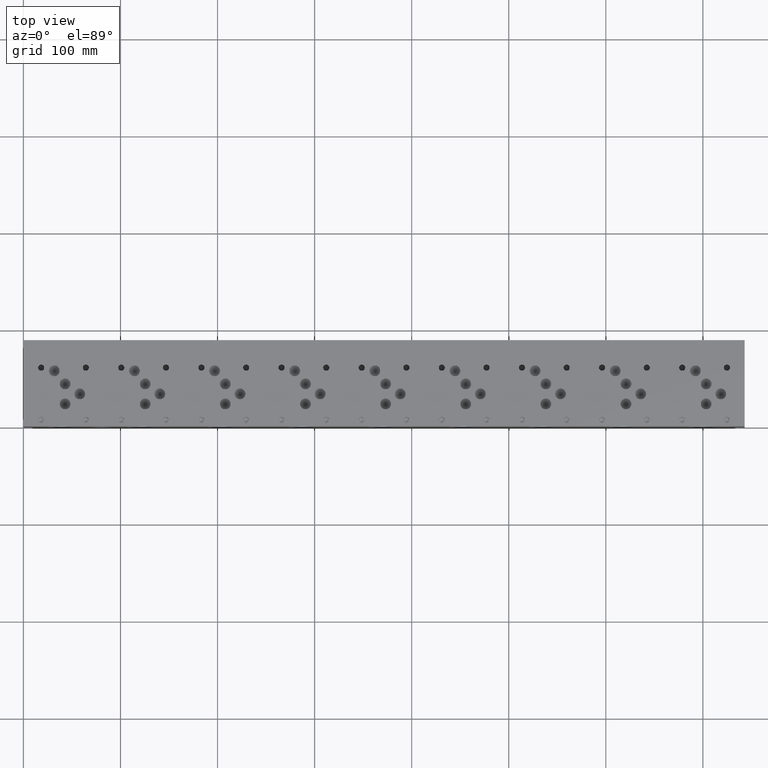
[diagram: clean part render]
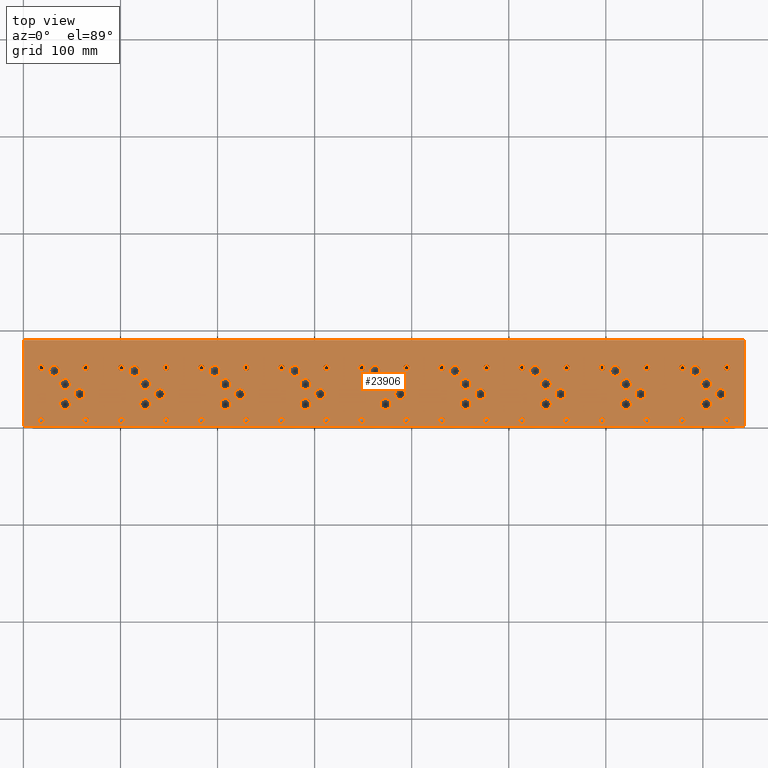
[diagram: same view with one face highlighted and labeled with its STEP entity id]
A machine part, top view. The second image highlights one B-rep face of the part: STEP entity #23906.
In plain terms, the highlighted planar face has unit normal (0, 0, 1).
Its self-contained STEP definition (entity closure, byte-faithful):
#1158=CIRCLE('',#25163,3.175);
#1159=CIRCLE('',#25164,3.175);
#1165=CIRCLE('',#25174,3.175);
#1166=CIRCLE('',#25175,3.175);
#1172=CIRCLE('',#25185,3.175);
#1173=CIRCLE('',#25186,3.175);
#1179=CIRCLE('',#25196,3.175);
#1180=CIRCLE('',#25197,3.175);
#1186=CIRCLE('',#25207,3.175);
#1187=CIRCLE('',#25208,3.175);
#1193=CIRCLE('',#25218,3.175);
#1194=CIRCLE('',#25219,3.175);
#1200=CIRCLE('',#25229,3.175);
#1201=CIRCLE('',#25230,3.175);
#1207=CIRCLE('',#25240,3.175);
#1208=CIRCLE('',#25241,3.175);
#1214=CIRCLE('',#25251,3.175);
#1215=CIRCLE('',#25252,3.175);
#1221=CIRCLE('',#25262,3.175);
#1222=CIRCLE('',#25263,3.175);
#1228=CIRCLE('',#25273,3.175);
#1229=CIRCLE('',#25274,3.175);
#1235=CIRCLE('',#25284,3.175);
#1236=CIRCLE('',#25285,3.175);
#1242=CIRCLE('',#25295,3.175);
#1243=CIRCLE('',#25296,3.175);
#1249=CIRCLE('',#25306,3.175);
#1250=CIRCLE('',#25307,3.175);
#1256=CIRCLE('',#25317,3.175);
#1257=CIRCLE('',#25318,3.175);
#1263=CIRCLE('',#25328,3.175);
#1264=CIRCLE('',#25329,3.175);
#1270=CIRCLE('',#25339,3.175);
#1271=CIRCLE('',#25340,3.175);
#1277=CIRCLE('',#25350,3.175);
#1278=CIRCLE('',#25351,3.175);
#1284=CIRCLE('',#25361,3.175);
#1285=CIRCLE('',#25362,3.175);
#1291=CIRCLE('',#25372,3.175);
#1292=CIRCLE('',#25373,3.175);
#1298=CIRCLE('',#25383,3.175);
#1299=CIRCLE('',#25384,3.175);
#1305=CIRCLE('',#25394,3.175);
#1306=CIRCLE('',#25395,3.175);
#1312=CIRCLE('',#25405,3.175);
#1313=CIRCLE('',#25406,3.175);
#1319=CIRCLE('',#25416,3.175);
#1320=CIRCLE('',#25417,3.175);
#1326=CIRCLE('',#25427,3.175);
#1327=CIRCLE('',#25428,3.175);
#1333=CIRCLE('',#25438,3.175);
#1334=CIRCLE('',#25439,3.175);
#1340=CIRCLE('',#25449,3.175);
#1341=CIRCLE('',#25450,3.175);
#1347=CIRCLE('',#25460,3.175);
#1348=CIRCLE('',#25461,3.175);
#1354=CIRCLE('',#25471,3.175);
#1355=CIRCLE('',#25472,3.175);
#1361=CIRCLE('',#25482,3.175);
#1362=CIRCLE('',#25483,3.175);
#1368=CIRCLE('',#25493,3.175);
#1369=CIRCLE('',#25494,3.175);
#1375=CIRCLE('',#25504,3.175);
#1376=CIRCLE('',#25505,3.175);
#1379=CIRCLE('',#25511,5.5626);
#1380=CIRCLE('',#25512,5.5626);
#1383=CIRCLE('',#25517,5.5626);
#1384=CIRCLE('',#25518,5.5626);
#1387=CIRCLE('',#25523,5.5626);
#1388=CIRCLE('',#25524,5.5626);
#1391=CIRCLE('',#25529,5.5626);
#1392=CIRCLE('',#25530,5.5626);
#1395=CIRCLE('',#25535,5.5626);
#1396=CIRCLE('',#25536,5.5626);
#1399=CIRCLE('',#25541,5.5626);
#1400=CIRCLE('',#25542,5.5626);
#1403=CIRCLE('',#25547,5.5626);
#1404=CIRCLE('',#25548,5.5626);
#1407=CIRCLE('',#25553,5.5626);
#1408=CIRCLE('',#25554,5.5626);
#1411=CIRCLE('',#25559,5.5626);
#1412=CIRCLE('',#25560,5.5626);
#1415=CIRCLE('',#25565,5.5626);
#1416=CIRCLE('',#25566,5.5626);
#1419=CIRCLE('',#25571,5.5626);
#1420=CIRCLE('',#25572,5.5626);
#1423=CIRCLE('',#25577,5.5626);
#1424=CIRCLE('',#25578,5.5626);
#1427=CIRCLE('',#25583,5.5626);
#1428=CIRCLE('',#25584,5.5626);
#1431=CIRCLE('',#25589,5.5626);
#1432=CIRCLE('',#25590,5.5626);
#1435=CIRCLE('',#25595,5.5626);
#1436=CIRCLE('',#25596,5.5626);
#1439=CIRCLE('',#25601,5.5626);
#1440=CIRCLE('',#25602,5.5626);
#1443=CIRCLE('',#25607,5.5626);
#1444=CIRCLE('',#25608,5.5626);
#1447=CIRCLE('',#25613,5.5626);
#1448=CIRCLE('',#25614,5.5626);
#1451=CIRCLE('',#25619,5.5626);
#1452=CIRCLE('',#25620,5.5626);
#1455=CIRCLE('',#25625,5.5626);
#1456=CIRCLE('',#25626,5.5626);
#1459=CIRCLE('',#25631,5.5626);
#1460=CIRCLE('',#25632,5.5626);
#1463=CIRCLE('',#25637,5.5626);
#1464=CIRCLE('',#25638,5.5626);
#1467=CIRCLE('',#25643,5.5626);
#1468=CIRCLE('',#25644,5.5626);
#1471=CIRCLE('',#25649,5.5626);
#1472=CIRCLE('',#25650,5.5626);
#1475=CIRCLE('',#25655,5.5626);
#1476=CIRCLE('',#25656,5.5626);
#1479=CIRCLE('',#25661,5.5626);
#1480=CIRCLE('',#25662,5.5626);
#1483=CIRCLE('',#25667,5.5626);
#1484=CIRCLE('',#25668,5.5626);
#1487=CIRCLE('',#25673,5.5626);
#1488=CIRCLE('',#25674,5.5626);
#1491=CIRCLE('',#25679,5.5626);
#1492=CIRCLE('',#25680,5.5626);
#1495=CIRCLE('',#25685,5.5626);
#1496=CIRCLE('',#25686,5.5626);
#1499=CIRCLE('',#25691,5.5626);
#1500=CIRCLE('',#25692,5.5626);
#1503=CIRCLE('',#25697,5.5626);
#1504=CIRCLE('',#25698,5.5626);
#1507=CIRCLE('',#25703,5.5626);
#1508=CIRCLE('',#25704,5.5626);
#1511=CIRCLE('',#25709,5.5626);
#1512=CIRCLE('',#25710,5.5626);
#1515=CIRCLE('',#25715,5.5626);
#1516=CIRCLE('',#25716,5.5626);
#1519=CIRCLE('',#25721,5.5626);
#1520=CIRCLE('',#25722,5.5626);
#1526=CIRCLE('',#25731,3.175);
#1527=CIRCLE('',#25732,3.175);
#1533=CIRCLE('',#25742,3.175);
#1534=CIRCLE('',#25743,3.175);
#1540=CIRCLE('',#25753,3.175);
#1541=CIRCLE('',#25754,3.175);
#1547=CIRCLE('',#25764,3.175);
#1548=CIRCLE('',#25765,3.175);
#2284=FACE_BOUND('',#5062,.T.);
#2285=FACE_BOUND('',#5063,.T.);
#2286=FACE_BOUND('',#5064,.T.);
#2287=FACE_BOUND('',#5065,.T.);
#2288=FACE_BOUND('',#5066,.T.);
#2289=FACE_BOUND('',#5067,.T.);
#2290=FACE_BOUND('',#5068,.T.);
#2291=FACE_BOUND('',#5069,.T.);
#2292=FACE_BOUND('',#5070,.T.);
#2293=FACE_BOUND('',#5071,.T.);
#2294=FACE_BOUND('',#5072,.T.);
#2295=FACE_BOUND('',#5073,.T.);
#2296=FACE_BOUND('',#5074,.T.);
#2297=FACE_BOUND('',#5075,.T.);
#2298=FACE_BOUND('',#5076,.T.);
#2299=FACE_BOUND('',#5077,.T.);
#2300=FACE_BOUND('',#5078,.T.);
#2301=FACE_BOUND('',#5079,.T.);
#2302=FACE_BOUND('',#5080,.T.);
#2303=FACE_BOUND('',#5081,.T.);
#2304=FACE_BOUND('',#5082,.T.);
#2305=FACE_BOUND('',#5083,.T.);
#2306=FACE_BOUND('',#5084,.T.);
#2307=FACE_BOUND('',#5085,.T.);
#2308=FACE_BOUND('',#5086,.T.);
#2309=FACE_BOUND('',#5087,.T.);
#2310=FACE_BOUND('',#5088,.T.);
#2311=FACE_BOUND('',#5089,.T.);
#2312=FACE_BOUND('',#5090,.T.);
#2313=FACE_BOUND('',#5091,.T.);
#2314=FACE_BOUND('',#5092,.T.);
#2315=FACE_BOUND('',#5093,.T.);
#2316=FACE_BOUND('',#5094,.T.);
#2317=FACE_BOUND('',#5095,.T.);
#2318=FACE_BOUND('',#5096,.T.);
#2319=FACE_BOUND('',#5097,.T.);
#2320=FACE_BOUND('',#5098,.T.);
#2321=FACE_BOUND('',#5099,.T.);
#2322=FACE_BOUND('',#5100,.T.);
#2323=FACE_BOUND('',#5101,.T.);
#2324=FACE_BOUND('',#5102,.T.);
#2325=FACE_BOUND('',#5103,.T.);
#2326=FACE_BOUND('',#5104,.T.);
#2327=FACE_BOUND('',#5105,.T.);
#2328=FACE_BOUND('',#5106,.T.);
#2329=FACE_BOUND('',#5107,.T.);
#2330=FACE_BOUND('',#5108,.T.);
#2331=FACE_BOUND('',#5109,.T.);
#2332=FACE_BOUND('',#5110,.T.);
#2333=FACE_BOUND('',#5111,.T.);
#2334=FACE_BOUND('',#5112,.T.);
#2335=FACE_BOUND('',#5113,.T.);
#2336=FACE_BOUND('',#5114,.T.);
#2337=FACE_BOUND('',#5115,.T.);
#2338=FACE_BOUND('',#5116,.T.);
#2339=FACE_BOUND('',#5117,.T.);
#2340=FACE_BOUND('',#5118,.T.);
#2341=FACE_BOUND('',#5119,.T.);
#2342=FACE_BOUND('',#5120,.T.);
#2343=FACE_BOUND('',#5121,.T.);
#2344=FACE_BOUND('',#5122,.T.);
#2345=FACE_BOUND('',#5123,.T.);
#2346=FACE_BOUND('',#5124,.T.);
#2347=FACE_BOUND('',#5125,.T.);
#2348=FACE_BOUND('',#5126,.T.);
#2349=FACE_BOUND('',#5127,.T.);
#2350=FACE_BOUND('',#5128,.T.);
#2351=FACE_BOUND('',#5129,.T.);
#2352=FACE_BOUND('',#5130,.T.);
#2353=FACE_BOUND('',#5131,.T.);
#2354=FACE_BOUND('',#5132,.T.);
#2355=FACE_BOUND('',#5133,.T.);
#3611=FACE_OUTER_BOUND('',#5061,.T.);
#5061=EDGE_LOOP('',(#21183,#21184,#21185,#21186));
#5062=EDGE_LOOP('',(#21187,#21188));
#5063=EDGE_LOOP('',(#21189,#21190));
#5064=EDGE_LOOP('',(#21191,#21192));
#5065=EDGE_LOOP('',(#21193,#21194));
#5066=EDGE_LOOP('',(#21195,#21196));
#5067=EDGE_LOOP('',(#21197,#21198));
#5068=EDGE_LOOP('',(#21199,#21200));
#5069=EDGE_LOOP('',(#21201,#21202));
#5070=EDGE_LOOP('',(#21203,#21204));
#5071=EDGE_LOOP('',(#21205,#21206));
#5072=EDGE_LOOP('',(#21207,#21208));
#5073=EDGE_LOOP('',(#21209,#21210));
#5074=EDGE_LOOP('',(#21211,#21212));
#5075=EDGE_LOOP('',(#21213,#21214));
#5076=EDGE_LOOP('',(#21215,#21216));
#5077=EDGE_LOOP('',(#21217,#21218));
#5078=EDGE_LOOP('',(#21219,#21220));
#5079=EDGE_LOOP('',(#21221,#21222));
#5080=EDGE_LOOP('',(#21223,#21224));
#5081=EDGE_LOOP('',(#21225,#21226));
#5082=EDGE_LOOP('',(#21227,#21228));
#5083=EDGE_LOOP('',(#21229,#21230));
#5084=EDGE_LOOP('',(#21231,#21232));
#5085=EDGE_LOOP('',(#21233,#21234));
#5086=EDGE_LOOP('',(#21235,#21236));
#5087=EDGE_LOOP('',(#21237,#21238));
#5088=EDGE_LOOP('',(#21239,#21240));
#5089=EDGE_LOOP('',(#21241,#21242));
#5090=EDGE_LOOP('',(#21243,#21244));
#5091=EDGE_LOOP('',(#21245,#21246));
#5092=EDGE_LOOP('',(#21247,#21248));
#5093=EDGE_LOOP('',(#21249,#21250));
#5094=EDGE_LOOP('',(#21251,#21252));
#5095=EDGE_LOOP('',(#21253,#21254));
#5096=EDGE_LOOP('',(#21255,#21256));
#5097=EDGE_LOOP('',(#21257,#21258));
#5098=EDGE_LOOP('',(#21259,#21260));
#5099=EDGE_LOOP('',(#21261,#21262));
#5100=EDGE_LOOP('',(#21263,#21264));
#5101=EDGE_LOOP('',(#21265,#21266));
#5102=EDGE_LOOP('',(#21267,#21268));
#5103=EDGE_LOOP('',(#21269,#21270));
#5104=EDGE_LOOP('',(#21271,#21272));
#5105=EDGE_LOOP('',(#21273,#21274));
#5106=EDGE_LOOP('',(#21275,#21276));
#5107=EDGE_LOOP('',(#21277,#21278));
#5108=EDGE_LOOP('',(#21279,#21280));
#5109=EDGE_LOOP('',(#21281,#21282));
#5110=EDGE_LOOP('',(#21283,#21284));
#5111=EDGE_LOOP('',(#21285,#21286));
#5112=EDGE_LOOP('',(#21287,#21288));
#5113=EDGE_LOOP('',(#21289,#21290));
#5114=EDGE_LOOP('',(#21291,#21292));
#5115=EDGE_LOOP('',(#21293,#21294));
#5116=EDGE_LOOP('',(#21295,#21296));
#5117=EDGE_LOOP('',(#21297,#21298));
#5118=EDGE_LOOP('',(#21299,#21300));
#5119=EDGE_LOOP('',(#21301,#21302));
#5120=EDGE_LOOP('',(#21303,#21304));
#5121=EDGE_LOOP('',(#21305,#21306));
#5122=EDGE_LOOP('',(#21307,#21308));
#5123=EDGE_LOOP('',(#21309,#21310));
#5124=EDGE_LOOP('',(#21311,#21312));
#5125=EDGE_LOOP('',(#21313,#21314));
#5126=EDGE_LOOP('',(#21315,#21316));
#5127=EDGE_LOOP('',(#21317,#21318));
#5128=EDGE_LOOP('',(#21319,#21320));
#5129=EDGE_LOOP('',(#21321,#21322));
#5130=EDGE_LOOP('',(#21323,#21324));
#5131=EDGE_LOOP('',(#21325,#21326));
#5132=EDGE_LOOP('',(#21327,#21328));
#5133=EDGE_LOOP('',(#21329,#21330));
#5170=LINE('',#31479,#7097);
#6495=LINE('',#38324,#8422);
#6529=LINE('',#38546,#8456);
#7061=LINE('',#41858,#8988);
#7097=VECTOR('',#25836,10.);
#8422=VECTOR('',#28077,10.);
#8456=VECTOR('',#28147,10.);
#8988=VECTOR('',#31395,10.);
#9013=VERTEX_POINT('',#31476);
#9014=VERTEX_POINT('',#31478);
#10268=VERTEX_POINT('',#38322);
#10310=VERTEX_POINT('',#38545);
#10871=VERTEX_POINT('',#40610);
#10872=VERTEX_POINT('',#40611);
#10879=VERTEX_POINT('',#40632);
#10880=VERTEX_POINT('',#40633);
#10887=VERTEX_POINT('',#40654);
#10888=VERTEX_POINT('',#40655);
#10895=VERTEX_POINT('',#40676);
#10896=VERTEX_POINT('',#40677);
#10903=VERTEX_POINT('',#40698);
#10904=VERTEX_POINT('',#40699);
#10911=VERTEX_POINT('',#40720);
#10912=VERTEX_POINT('',#40721);
#10919=VERTEX_POINT('',#40742);
#10920=VERTEX_POINT('',#40743);
#10927=VERTEX_POINT('',#40764);
#10928=VERTEX_POINT('',#40765);
#10935=VERTEX_POINT('',#40786);
#10936=VERTEX_POINT('',#40787);
#10943=VERTEX_POINT('',#40808);
#10944=VERTEX_POINT('',#40809);
#10951=VERTEX_POINT('',#40830);
#10952=VERTEX_POINT('',#40831);
#10959=VERTEX_POINT('',#40852);
#10960=VERTEX_POINT('',#40853);
#10967=VERTEX_POINT('',#40874);
#10968=VERTEX_POINT('',#40875);
#10975=VERTEX_POINT('',#40896);
#10976=VERTEX_POINT('',#40897);
#10983=VERTEX_POINT('',#40918);
#10984=VERTEX_POINT('',#40919);
#10991=VERTEX_POINT('',#40940);
#10992=VERTEX_POINT('',#40941);
#10999=VERTEX_POINT('',#40962);
#11000=VERTEX_POINT('',#40963);
#11007=VERTEX_POINT('',#40984);
#11008=VERTEX_POINT('',#40985);
#11015=VERTEX_POINT('',#41006);
#11016=VERTEX_POINT('',#41007);
#11023=VERTEX_POINT('',#41028);
#11024=VERTEX_POINT('',#41029);
#11031=VERTEX_POINT('',#41050);
#11032=VERTEX_POINT('',#41051);
#11039=VERTEX_POINT('',#41072);
#11040=VERTEX_POINT('',#41073);
#11047=VERTEX_POINT('',#41094);
#11048=VERTEX_POINT('',#41095);
#11055=VERTEX_POINT('',#41116);
#11056=VERTEX_POINT('',#41117);
#11063=VERTEX_POINT('',#41138);
#11064=VERTEX_POINT('',#41139);
#11071=VERTEX_POINT('',#41160);
#11072=VERTEX_POINT('',#41161);
#11079=VERTEX_POINT('',#41182);
#11080=VERTEX_POINT('',#41183);
#11087=VERTEX_POINT('',#41204);
#11088=VERTEX_POINT('',#41205);
#11095=VERTEX_POINT('',#41226);
#11096=VERTEX_POINT('',#41227);
#11103=VERTEX_POINT('',#41248);
#11104=VERTEX_POINT('',#41249);
#11111=VERTEX_POINT('',#41270);
#11112=VERTEX_POINT('',#41271);
#11119=VERTEX_POINT('',#41292);
#11120=VERTEX_POINT('',#41293);
#11124=VERTEX_POINT('',#41307);
#11125=VERTEX_POINT('',#41308);
#11129=VERTEX_POINT('',#41320);
#11130=VERTEX_POINT('',#41321);
#11134=VERTEX_POINT('',#41333);
#11135=VERTEX_POINT('',#41334);
#11139=VERTEX_POINT('',#41346);
#11140=VERTEX_POINT('',#41347);
#11144=VERTEX_POINT('',#41359);
#11145=VERTEX_POINT('',#41360);
#11149=VERTEX_POINT('',#41372);
#11150=VERTEX_POINT('',#41373);
#11154=VERTEX_POINT('',#41385);
#11155=VERTEX_POINT('',#41386);
#11159=VERTEX_POINT('',#41398);
#11160=VERTEX_POINT('',#41399);
#11164=VERTEX_POINT('',#41411);
#11165=VERTEX_POINT('',#41412);
#11169=VERTEX_POINT('',#41424);
#11170=VERTEX_POINT('',#41425);
#11174=VERTEX_POINT('',#41437);
#11175=VERTEX_POINT('',#41438);
#11179=VERTEX_POINT('',#41450);
#11180=VERTEX_POINT('',#41451);
#11184=VERTEX_POINT('',#41463);
#11185=VERTEX_POINT('',#41464);
#11189=VERTEX_POINT('',#41476);
#11190=VERTEX_POINT('',#41477);
#11194=VERTEX_POINT('',#41489);
#11195=VERTEX_POINT('',#41490);
#11199=VERTEX_POINT('',#41502);
#11200=VERTEX_POINT('',#41503);
#11204=VERTEX_POINT('',#41515);
#11205=VERTEX_POINT('',#41516);
#11209=VERTEX_POINT('',#41528);
#11210=VERTEX_POINT('',#41529);
#11214=VERTEX_POINT('',#41541);
#11215=VERTEX_POINT('',#41542);
#11219=VERTEX_POINT('',#41554);
#11220=VERTEX_POINT('',#41555);
#11224=VERTEX_POINT('',#41567);
#11225=VERTEX_POINT('',#41568);
#11229=VERTEX_POINT('',#41580);
#11230=VERTEX_POINT('',#41581);
#11234=VERTEX_POINT('',#41593);
#11235=VERTEX_POINT('',#41594);
#11239=VERTEX_POINT('',#41606);
#11240=VERTEX_POINT('',#41607);
#11244=VERTEX_POINT('',#41619);
#11245=VERTEX_POINT('',#41620);
#11249=VERTEX_POINT('',#41632);
#11250=VERTEX_POINT('',#41633);
#11254=VERTEX_POINT('',#41645);
#11255=VERTEX_POINT('',#41646);
#11259=VERTEX_POINT('',#41658);
#11260=VERTEX_POINT('',#41659);
#11264=VERTEX_POINT('',#41671);
#11265=VERTEX_POINT('',#41672);
#11269=VERTEX_POINT('',#41684);
#11270=VERTEX_POINT('',#41685);
#11274=VERTEX_POINT('',#41697);
#11275=VERTEX_POINT('',#41698);
#11279=VERTEX_POINT('',#41710);
#11280=VERTEX_POINT('',#41711);
#11284=VERTEX_POINT('',#41723);
#11285=VERTEX_POINT('',#41724);
#11289=VERTEX_POINT('',#41736);
#11290=VERTEX_POINT('',#41737);
#11294=VERTEX_POINT('',#41749);
#11295=VERTEX_POINT('',#41750);
#11299=VERTEX_POINT('',#41762);
#11300=VERTEX_POINT('',#41763);
#11307=VERTEX_POINT('',#41782);
#11308=VERTEX_POINT('',#41783);
#11315=VERTEX_POINT('',#41804);
#11316=VERTEX_POINT('',#41805);
#11323=VERTEX_POINT('',#41826);
#11324=VERTEX_POINT('',#41827);
#11331=VERTEX_POINT('',#41848);
#11332=VERTEX_POINT('',#41849);
#11368=EDGE_CURVE('',#9014,#9013,#5170,.T.);
#13213=EDGE_CURVE('',#9013,#10268,#6495,.T.);
#13271=EDGE_CURVE('',#10310,#9014,#6529,.T.);
#14095=EDGE_CURVE('',#10871,#10872,#1158,.T.);
#14096=EDGE_CURVE('',#10872,#10871,#1159,.T.);
#14105=EDGE_CURVE('',#10879,#10880,#1165,.T.);
#14106=EDGE_CURVE('',#10880,#10879,#1166,.T.);
#14115=EDGE_CURVE('',#10887,#10888,#1172,.T.);
#14116=EDGE_CURVE('',#10888,#10887,#1173,.T.);
#14125=EDGE_CURVE('',#10895,#10896,#1179,.T.);
#14126=EDGE_CURVE('',#10896,#10895,#1180,.T.);
#14135=EDGE_CURVE('',#10903,#10904,#1186,.T.);
#14136=EDGE_CURVE('',#10904,#10903,#1187,.T.);
#14145=EDGE_CURVE('',#10911,#10912,#1193,.T.);
#14146=EDGE_CURVE('',#10912,#10911,#1194,.T.);
#14155=EDGE_CURVE('',#10919,#10920,#1200,.T.);
#14156=EDGE_CURVE('',#10920,#10919,#1201,.T.);
#14165=EDGE_CURVE('',#10927,#10928,#1207,.T.);
#14166=EDGE_CURVE('',#10928,#10927,#1208,.T.);
#14175=EDGE_CURVE('',#10935,#10936,#1214,.T.);
#14176=EDGE_CURVE('',#10936,#10935,#1215,.T.);
#14185=EDGE_CURVE('',#10943,#10944,#1221,.T.);
#14186=EDGE_CURVE('',#10944,#10943,#1222,.T.);
#14195=EDGE_CURVE('',#10951,#10952,#1228,.T.);
#14196=EDGE_CURVE('',#10952,#10951,#1229,.T.);
#14205=EDGE_CURVE('',#10959,#10960,#1235,.T.);
#14206=EDGE_CURVE('',#10960,#10959,#1236,.T.);
#14215=EDGE_CURVE('',#10967,#10968,#1242,.T.);
#14216=EDGE_CURVE('',#10968,#10967,#1243,.T.);
#14225=EDGE_CURVE('',#10975,#10976,#1249,.T.);
#14226=EDGE_CURVE('',#10976,#10975,#1250,.T.);
#14235=EDGE_CURVE('',#10983,#10984,#1256,.T.);
#14236=EDGE_CURVE('',#10984,#10983,#1257,.T.);
#14245=EDGE_CURVE('',#10991,#10992,#1263,.T.);
#14246=EDGE_CURVE('',#10992,#10991,#1264,.T.);
#14255=EDGE_CURVE('',#10999,#11000,#1270,.T.);
#14256=EDGE_CURVE('',#11000,#10999,#1271,.T.);
#14265=EDGE_CURVE('',#11007,#11008,#1277,.T.);
#14266=EDGE_CURVE('',#11008,#11007,#1278,.T.);
#14275=EDGE_CURVE('',#11015,#11016,#1284,.T.);
#14276=EDGE_CURVE('',#11016,#11015,#1285,.T.);
#14285=EDGE_CURVE('',#11023,#11024,#1291,.T.);
#14286=EDGE_CURVE('',#11024,#11023,#1292,.T.);
#14295=EDGE_CURVE('',#11031,#11032,#1298,.T.);
#14296=EDGE_CURVE('',#11032,#11031,#1299,.T.);
#14305=EDGE_CURVE('',#11039,#11040,#1305,.T.);
#14306=EDGE_CURVE('',#11040,#11039,#1306,.T.);
#14315=EDGE_CURVE('',#11047,#11048,#1312,.T.);
#14316=EDGE_CURVE('',#11048,#11047,#1313,.T.);
#14325=EDGE_CURVE('',#11055,#11056,#1319,.T.);
#14326=EDGE_CURVE('',#11056,#11055,#1320,.T.);
#14335=EDGE_CURVE('',#11063,#11064,#1326,.T.);
#14336=EDGE_CURVE('',#11064,#11063,#1327,.T.);
#14345=EDGE_CURVE('',#11071,#11072,#1333,.T.);
#14346=EDGE_CURVE('',#11072,#11071,#1334,.T.);
#14355=EDGE_CURVE('',#11079,#11080,#1340,.T.);
#14356=EDGE_CURVE('',#11080,#11079,#1341,.T.);
#14365=EDGE_CURVE('',#11087,#11088,#1347,.T.);
#14366=EDGE_CURVE('',#11088,#11087,#1348,.T.);
#14375=EDGE_CURVE('',#11095,#11096,#1354,.T.);
#14376=EDGE_CURVE('',#11096,#11095,#1355,.T.);
#14385=EDGE_CURVE('',#11103,#11104,#1361,.T.);
#14386=EDGE_CURVE('',#11104,#11103,#1362,.T.);
#14395=EDGE_CURVE('',#11111,#11112,#1368,.T.);
#14396=EDGE_CURVE('',#11112,#11111,#1369,.T.);
#14405=EDGE_CURVE('',#11119,#11120,#1375,.T.);
#14406=EDGE_CURVE('',#11120,#11119,#1376,.T.);
#14412=EDGE_CURVE('',#11124,#11125,#1379,.T.);
#14413=EDGE_CURVE('',#11125,#11124,#1380,.T.);
#14418=EDGE_CURVE('',#11129,#11130,#1383,.T.);
#14419=EDGE_CURVE('',#11130,#11129,#1384,.T.);
#14424=EDGE_CURVE('',#11134,#11135,#1387,.T.);
#14425=EDGE_CURVE('',#11135,#11134,#1388,.T.);
#14430=EDGE_CURVE('',#11139,#11140,#1391,.T.);
#14431=EDGE_CURVE('',#11140,#11139,#1392,.T.);
#14436=EDGE_CURVE('',#11144,#11145,#1395,.T.);
#14437=EDGE_CURVE('',#11145,#11144,#1396,.T.);
#14442=EDGE_CURVE('',#11149,#11150,#1399,.T.);
#14443=EDGE_CURVE('',#11150,#11149,#1400,.T.);
#14448=EDGE_CURVE('',#11154,#11155,#1403,.T.);
#14449=EDGE_CURVE('',#11155,#11154,#1404,.T.);
#14454=EDGE_CURVE('',#11159,#11160,#1407,.T.);
#14455=EDGE_CURVE('',#11160,#11159,#1408,.T.);
#14460=EDGE_CURVE('',#11164,#11165,#1411,.T.);
#14461=EDGE_CURVE('',#11165,#11164,#1412,.T.);
#14466=EDGE_CURVE('',#11169,#11170,#1415,.T.);
#14467=EDGE_CURVE('',#11170,#11169,#1416,.T.);
#14472=EDGE_CURVE('',#11174,#11175,#1419,.T.);
#14473=EDGE_CURVE('',#11175,#11174,#1420,.T.);
#14478=EDGE_CURVE('',#11179,#11180,#1423,.T.);
#14479=EDGE_CURVE('',#11180,#11179,#1424,.T.);
#14484=EDGE_CURVE('',#11184,#11185,#1427,.T.);
#14485=EDGE_CURVE('',#11185,#11184,#1428,.T.);
#14490=EDGE_CURVE('',#11189,#11190,#1431,.T.);
#14491=EDGE_CURVE('',#11190,#11189,#1432,.T.);
#14496=EDGE_CURVE('',#11194,#11195,#1435,.T.);
#14497=EDGE_CURVE('',#11195,#11194,#1436,.T.);
#14502=EDGE_CURVE('',#11199,#11200,#1439,.T.);
#14503=EDGE_CURVE('',#11200,#11199,#1440,.T.);
#14508=EDGE_CURVE('',#11204,#11205,#1443,.T.);
#14509=EDGE_CURVE('',#11205,#11204,#1444,.T.);
#14514=EDGE_CURVE('',#11209,#11210,#1447,.T.);
#14515=EDGE_CURVE('',#11210,#11209,#1448,.T.);
#14520=EDGE_CURVE('',#11214,#11215,#1451,.T.);
#14521=EDGE_CURVE('',#11215,#11214,#1452,.T.);
#14526=EDGE_CURVE('',#11219,#11220,#1455,.T.);
#14527=EDGE_CURVE('',#11220,#11219,#1456,.T.);
#14532=EDGE_CURVE('',#11224,#11225,#1459,.T.);
#14533=EDGE_CURVE('',#11225,#11224,#1460,.T.);
#14538=EDGE_CURVE('',#11229,#11230,#1463,.T.);
#14539=EDGE_CURVE('',#11230,#11229,#1464,.T.);
#14544=EDGE_CURVE('',#11234,#11235,#1467,.T.);
#14545=EDGE_CURVE('',#11235,#11234,#1468,.T.);
#14550=EDGE_CURVE('',#11239,#11240,#1471,.T.);
#14551=EDGE_CURVE('',#11240,#11239,#1472,.T.);
#14556=EDGE_CURVE('',#11244,#11245,#1475,.T.);
#14557=EDGE_CURVE('',#11245,#11244,#1476,.T.);
#14562=EDGE_CURVE('',#11249,#11250,#1479,.T.);
#14563=EDGE_CURVE('',#11250,#11249,#1480,.T.);
#14568=EDGE_CURVE('',#11254,#11255,#1483,.T.);
#14569=EDGE_CURVE('',#11255,#11254,#1484,.T.);
#14574=EDGE_CURVE('',#11259,#11260,#1487,.T.);
#14575=EDGE_CURVE('',#11260,#11259,#1488,.T.);
#14580=EDGE_CURVE('',#11264,#11265,#1491,.T.);
#14581=EDGE_CURVE('',#11265,#11264,#1492,.T.);
#14586=EDGE_CURVE('',#11269,#11270,#1495,.T.);
#14587=EDGE_CURVE('',#11270,#11269,#1496,.T.);
#14592=EDGE_CURVE('',#11274,#11275,#1499,.T.);
#14593=EDGE_CURVE('',#11275,#11274,#1500,.T.);
#14598=EDGE_CURVE('',#11279,#11280,#1503,.T.);
#14599=EDGE_CURVE('',#11280,#11279,#1504,.T.);
#14604=EDGE_CURVE('',#11284,#11285,#1507,.T.);
#14605=EDGE_CURVE('',#11285,#11284,#1508,.T.);
#14610=EDGE_CURVE('',#11289,#11290,#1511,.T.);
#14611=EDGE_CURVE('',#11290,#11289,#1512,.T.);
#14616=EDGE_CURVE('',#11294,#11295,#1515,.T.);
#14617=EDGE_CURVE('',#11295,#11294,#1516,.T.);
#14622=EDGE_CURVE('',#11299,#11300,#1519,.T.);
#14623=EDGE_CURVE('',#11300,#11299,#1520,.T.);
#14631=EDGE_CURVE('',#11307,#11308,#1526,.T.);
#14632=EDGE_CURVE('',#11308,#11307,#1527,.T.);
#14641=EDGE_CURVE('',#11315,#11316,#1533,.T.);
#14642=EDGE_CURVE('',#11316,#11315,#1534,.T.);
#14651=EDGE_CURVE('',#11323,#11324,#1540,.T.);
#14652=EDGE_CURVE('',#11324,#11323,#1541,.T.);
#14661=EDGE_CURVE('',#11331,#11332,#1547,.T.);
#14662=EDGE_CURVE('',#11332,#11331,#1548,.T.);
#14666=EDGE_CURVE('',#10268,#10310,#7061,.T.);
#21183=ORIENTED_EDGE('',*,*,#11368,.T.);
#21184=ORIENTED_EDGE('',*,*,#13213,.T.);
#21185=ORIENTED_EDGE('',*,*,#14666,.T.);
#21186=ORIENTED_EDGE('',*,*,#13271,.T.);
#21187=ORIENTED_EDGE('',*,*,#14095,.T.);
#21188=ORIENTED_EDGE('',*,*,#14096,.T.);
#21189=ORIENTED_EDGE('',*,*,#14105,.T.);
#21190=ORIENTED_EDGE('',*,*,#14106,.T.);
#21191=ORIENTED_EDGE('',*,*,#14115,.T.);
#21192=ORIENTED_EDGE('',*,*,#14116,.T.);
#21193=ORIENTED_EDGE('',*,*,#14125,.T.);
#21194=ORIENTED_EDGE('',*,*,#14126,.T.);
#21195=ORIENTED_EDGE('',*,*,#14135,.T.);
#21196=ORIENTED_EDGE('',*,*,#14136,.T.);
#21197=ORIENTED_EDGE('',*,*,#14145,.T.);
#21198=ORIENTED_EDGE('',*,*,#14146,.T.);
#21199=ORIENTED_EDGE('',*,*,#14155,.T.);
#21200=ORIENTED_EDGE('',*,*,#14156,.T.);
#21201=ORIENTED_EDGE('',*,*,#14165,.T.);
#21202=ORIENTED_EDGE('',*,*,#14166,.T.);
#21203=ORIENTED_EDGE('',*,*,#14175,.T.);
#21204=ORIENTED_EDGE('',*,*,#14176,.T.);
#21205=ORIENTED_EDGE('',*,*,#14185,.T.);
#21206=ORIENTED_EDGE('',*,*,#14186,.T.);
#21207=ORIENTED_EDGE('',*,*,#14195,.T.);
#21208=ORIENTED_EDGE('',*,*,#14196,.T.);
#21209=ORIENTED_EDGE('',*,*,#14205,.T.);
#21210=ORIENTED_EDGE('',*,*,#14206,.T.);
#21211=ORIENTED_EDGE('',*,*,#14215,.T.);
#21212=ORIENTED_EDGE('',*,*,#14216,.T.);
#21213=ORIENTED_EDGE('',*,*,#14225,.T.);
#21214=ORIENTED_EDGE('',*,*,#14226,.T.);
#21215=ORIENTED_EDGE('',*,*,#14235,.T.);
#21216=ORIENTED_EDGE('',*,*,#14236,.T.);
#21217=ORIENTED_EDGE('',*,*,#14245,.T.);
#21218=ORIENTED_EDGE('',*,*,#14246,.T.);
#21219=ORIENTED_EDGE('',*,*,#14255,.T.);
#21220=ORIENTED_EDGE('',*,*,#14256,.T.);
#21221=ORIENTED_EDGE('',*,*,#14265,.T.);
#21222=ORIENTED_EDGE('',*,*,#14266,.T.);
#21223=ORIENTED_EDGE('',*,*,#14275,.T.);
#21224=ORIENTED_EDGE('',*,*,#14276,.T.);
#21225=ORIENTED_EDGE('',*,*,#14285,.T.);
#21226=ORIENTED_EDGE('',*,*,#14286,.T.);
#21227=ORIENTED_EDGE('',*,*,#14295,.T.);
#21228=ORIENTED_EDGE('',*,*,#14296,.T.);
#21229=ORIENTED_EDGE('',*,*,#14305,.T.);
#21230=ORIENTED_EDGE('',*,*,#14306,.T.);
#21231=ORIENTED_EDGE('',*,*,#14315,.T.);
#21232=ORIENTED_EDGE('',*,*,#14316,.T.);
#21233=ORIENTED_EDGE('',*,*,#14325,.T.);
#21234=ORIENTED_EDGE('',*,*,#14326,.T.);
#21235=ORIENTED_EDGE('',*,*,#14335,.T.);
#21236=ORIENTED_EDGE('',*,*,#14336,.T.);
#21237=ORIENTED_EDGE('',*,*,#14345,.T.);
#21238=ORIENTED_EDGE('',*,*,#14346,.T.);
#21239=ORIENTED_EDGE('',*,*,#14355,.T.);
#21240=ORIENTED_EDGE('',*,*,#14356,.T.);
#21241=ORIENTED_EDGE('',*,*,#14365,.T.);
#21242=ORIENTED_EDGE('',*,*,#14366,.T.);
#21243=ORIENTED_EDGE('',*,*,#14375,.T.);
#21244=ORIENTED_EDGE('',*,*,#14376,.T.);
#21245=ORIENTED_EDGE('',*,*,#14385,.T.);
#21246=ORIENTED_EDGE('',*,*,#14386,.T.);
#21247=ORIENTED_EDGE('',*,*,#14395,.T.);
#21248=ORIENTED_EDGE('',*,*,#14396,.T.);
#21249=ORIENTED_EDGE('',*,*,#14405,.T.);
#21250=ORIENTED_EDGE('',*,*,#14406,.T.);
#21251=ORIENTED_EDGE('',*,*,#14412,.T.);
#21252=ORIENTED_EDGE('',*,*,#14413,.T.);
#21253=ORIENTED_EDGE('',*,*,#14418,.T.);
#21254=ORIENTED_EDGE('',*,*,#14419,.T.);
#21255=ORIENTED_EDGE('',*,*,#14424,.T.);
#21256=ORIENTED_EDGE('',*,*,#14425,.T.);
#21257=ORIENTED_EDGE('',*,*,#14430,.T.);
#21258=ORIENTED_EDGE('',*,*,#14431,.T.);
#21259=ORIENTED_EDGE('',*,*,#14436,.T.);
#21260=ORIENTED_EDGE('',*,*,#14437,.T.);
#21261=ORIENTED_EDGE('',*,*,#14442,.T.);
#21262=ORIENTED_EDGE('',*,*,#14443,.T.);
#21263=ORIENTED_EDGE('',*,*,#14448,.T.);
#21264=ORIENTED_EDGE('',*,*,#14449,.T.);
#21265=ORIENTED_EDGE('',*,*,#14454,.T.);
#21266=ORIENTED_EDGE('',*,*,#14455,.T.);
#21267=ORIENTED_EDGE('',*,*,#14460,.T.);
#21268=ORIENTED_EDGE('',*,*,#14461,.T.);
#21269=ORIENTED_EDGE('',*,*,#14466,.T.);
#21270=ORIENTED_EDGE('',*,*,#14467,.T.);
#21271=ORIENTED_EDGE('',*,*,#14472,.T.);
#21272=ORIENTED_EDGE('',*,*,#14473,.T.);
#21273=ORIENTED_EDGE('',*,*,#14478,.T.);
#21274=ORIENTED_EDGE('',*,*,#14479,.T.);
#21275=ORIENTED_EDGE('',*,*,#14484,.T.);
#21276=ORIENTED_EDGE('',*,*,#14485,.T.);
#21277=ORIENTED_EDGE('',*,*,#14490,.T.);
#21278=ORIENTED_EDGE('',*,*,#14491,.T.);
#21279=ORIENTED_EDGE('',*,*,#14496,.T.);
#21280=ORIENTED_EDGE('',*,*,#14497,.T.);
#21281=ORIENTED_EDGE('',*,*,#14502,.T.);
#21282=ORIENTED_EDGE('',*,*,#14503,.T.);
#21283=ORIENTED_EDGE('',*,*,#14508,.T.);
#21284=ORIENTED_EDGE('',*,*,#14509,.T.);
#21285=ORIENTED_EDGE('',*,*,#14514,.T.);
#21286=ORIENTED_EDGE('',*,*,#14515,.T.);
#21287=ORIENTED_EDGE('',*,*,#14520,.T.);
#21288=ORIENTED_EDGE('',*,*,#14521,.T.);
#21289=ORIENTED_EDGE('',*,*,#14526,.T.);
#21290=ORIENTED_EDGE('',*,*,#14527,.T.);
#21291=ORIENTED_EDGE('',*,*,#14532,.T.);
#21292=ORIENTED_EDGE('',*,*,#14533,.T.);
#21293=ORIENTED_EDGE('',*,*,#14538,.T.);
#21294=ORIENTED_EDGE('',*,*,#14539,.T.);
#21295=ORIENTED_EDGE('',*,*,#14544,.T.);
#21296=ORIENTED_EDGE('',*,*,#14545,.T.);
#21297=ORIENTED_EDGE('',*,*,#14550,.T.);
#21298=ORIENTED_EDGE('',*,*,#14551,.T.);
#21299=ORIENTED_EDGE('',*,*,#14556,.T.);
#21300=ORIENTED_EDGE('',*,*,#14557,.T.);
#21301=ORIENTED_EDGE('',*,*,#14562,.T.);
#21302=ORIENTED_EDGE('',*,*,#14563,.T.);
#21303=ORIENTED_EDGE('',*,*,#14568,.T.);
#21304=ORIENTED_EDGE('',*,*,#14569,.T.);
#21305=ORIENTED_EDGE('',*,*,#14574,.T.);
#21306=ORIENTED_EDGE('',*,*,#14575,.T.);
#21307=ORIENTED_EDGE('',*,*,#14580,.T.);
#21308=ORIENTED_EDGE('',*,*,#14581,.T.);
#21309=ORIENTED_EDGE('',*,*,#14586,.T.);
#21310=ORIENTED_EDGE('',*,*,#14587,.T.);
#21311=ORIENTED_EDGE('',*,*,#14592,.T.);
#21312=ORIENTED_EDGE('',*,*,#14593,.T.);
#21313=ORIENTED_EDGE('',*,*,#14598,.T.);
#21314=ORIENTED_EDGE('',*,*,#14599,.T.);
#21315=ORIENTED_EDGE('',*,*,#14604,.T.);
#21316=ORIENTED_EDGE('',*,*,#14605,.T.);
#21317=ORIENTED_EDGE('',*,*,#14610,.T.);
#21318=ORIENTED_EDGE('',*,*,#14611,.T.);
#21319=ORIENTED_EDGE('',*,*,#14616,.T.);
#21320=ORIENTED_EDGE('',*,*,#14617,.T.);
#21321=ORIENTED_EDGE('',*,*,#14622,.T.);
#21322=ORIENTED_EDGE('',*,*,#14623,.T.);
#21323=ORIENTED_EDGE('',*,*,#14631,.T.);
#21324=ORIENTED_EDGE('',*,*,#14632,.T.);
#21325=ORIENTED_EDGE('',*,*,#14641,.T.);
#21326=ORIENTED_EDGE('',*,*,#14642,.T.);
#21327=ORIENTED_EDGE('',*,*,#14651,.T.);
#21328=ORIENTED_EDGE('',*,*,#14652,.T.);
#21329=ORIENTED_EDGE('',*,*,#14661,.T.);
#21330=ORIENTED_EDGE('',*,*,#14662,.T.);
#21920=PLANE('',#25771);
#23906=ADVANCED_FACE('',(#3611,#2284,#2285,#2286,#2287,#2288,#2289,#2290,
#2291,#2292,#2293,#2294,#2295,#2296,#2297,#2298,#2299,#2300,#2301,#2302,
#2303,#2304,#2305,#2306,#2307,#2308,#2309,#2310,#2311,#2312,#2313,#2314,
#2315,#2316,#2317,#2318,#2319,#2320,#2321,#2322,#2323,#2324,#2325,#2326,
#2327,#2328,#2329,#2330,#2331,#2332,#2333,#2334,#2335,#2336,#2337,#2338,
#2339,#2340,#2341,#2342,#2343,#2344,#2345,#2346,#2347,#2348,#2349,#2350,
#2351,#2352,#2353,#2354,#2355),#21920,.T.);
#25163=AXIS2_PLACEMENT_3D('',#40612,#30003,#30004);
#25164=AXIS2_PLACEMENT_3D('',#40613,#30005,#30006);
#25174=AXIS2_PLACEMENT_3D('',#40634,#30028,#30029);
#25175=AXIS2_PLACEMENT_3D('',#40635,#30030,#30031);
#25185=AXIS2_PLACEMENT_3D('',#40656,#30053,#30054);
#25186=AXIS2_PLACEMENT_3D('',#40657,#30055,#30056);
#25196=AXIS2_PLACEMENT_3D('',#40678,#30078,#30079);
#25197=AXIS2_PLACEMENT_3D('',#40679,#30080,#30081);
#25207=AXIS2_PLACEMENT_3D('',#40700,#30103,#30104);
#25208=AXIS2_PLACEMENT_3D('',#40701,#30105,#30106);
#25218=AXIS2_PLACEMENT_3D('',#40722,#30128,#30129);
#25219=AXIS2_PLACEMENT_3D('',#40723,#30130,#30131);
#25229=AXIS2_PLACEMENT_3D('',#40744,#30153,#30154);
#25230=AXIS2_PLACEMENT_3D('',#40745,#30155,#30156);
#25240=AXIS2_PLACEMENT_3D('',#40766,#30178,#30179);
#25241=AXIS2_PLACEMENT_3D('',#40767,#30180,#30181);
#25251=AXIS2_PLACEMENT_3D('',#40788,#30203,#30204);
#25252=AXIS2_PLACEMENT_3D('',#40789,#30205,#30206);
#25262=AXIS2_PLACEMENT_3D('',#40810,#30228,#30229);
#25263=AXIS2_PLACEMENT_3D('',#40811,#30230,#30231);
#25273=AXIS2_PLACEMENT_3D('',#40832,#30253,#30254);
#25274=AXIS2_PLACEMENT_3D('',#40833,#30255,#30256);
#25284=AXIS2_PLACEMENT_3D('',#40854,#30278,#30279);
#25285=AXIS2_PLACEMENT_3D('',#40855,#30280,#30281);
#25295=AXIS2_PLACEMENT_3D('',#40876,#30303,#30304);
#25296=AXIS2_PLACEMENT_3D('',#40877,#30305,#30306);
#25306=AXIS2_PLACEMENT_3D('',#40898,#30328,#30329);
#25307=AXIS2_PLACEMENT_3D('',#40899,#30330,#30331);
#25317=AXIS2_PLACEMENT_3D('',#40920,#30353,#30354);
#25318=AXIS2_PLACEMENT_3D('',#40921,#30355,#30356);
#25328=AXIS2_PLACEMENT_3D('',#40942,#30378,#30379);
#25329=AXIS2_PLACEMENT_3D('',#40943,#30380,#30381);
#25339=AXIS2_PLACEMENT_3D('',#40964,#30403,#30404);
#25340=AXIS2_PLACEMENT_3D('',#40965,#30405,#30406);
#25350=AXIS2_PLACEMENT_3D('',#40986,#30428,#30429);
#25351=AXIS2_PLACEMENT_3D('',#40987,#30430,#30431);
#25361=AXIS2_PLACEMENT_3D('',#41008,#30453,#30454);
#25362=AXIS2_PLACEMENT_3D('',#41009,#30455,#30456);
#25372=AXIS2_PLACEMENT_3D('',#41030,#30478,#30479);
#25373=AXIS2_PLACEMENT_3D('',#41031,#30480,#30481);
#25383=AXIS2_PLACEMENT_3D('',#41052,#30503,#30504);
#25384=AXIS2_PLACEMENT_3D('',#41053,#30505,#30506);
#25394=AXIS2_PLACEMENT_3D('',#41074,#30528,#30529);
#25395=AXIS2_PLACEMENT_3D('',#41075,#30530,#30531);
#25405=AXIS2_PLACEMENT_3D('',#41096,#30553,#30554);
#25406=AXIS2_PLACEMENT_3D('',#41097,#30555,#30556);
#25416=AXIS2_PLACEMENT_3D('',#41118,#30578,#30579);
#25417=AXIS2_PLACEMENT_3D('',#41119,#30580,#30581);
#25427=AXIS2_PLACEMENT_3D('',#41140,#30603,#30604);
#25428=AXIS2_PLACEMENT_3D('',#41141,#30605,#30606);
#25438=AXIS2_PLACEMENT_3D('',#41162,#30628,#30629);
#25439=AXIS2_PLACEMENT_3D('',#41163,#30630,#30631);
#25449=AXIS2_PLACEMENT_3D('',#41184,#30653,#30654);
#25450=AXIS2_PLACEMENT_3D('',#41185,#30655,#30656);
#25460=AXIS2_PLACEMENT_3D('',#41206,#30678,#30679);
#25461=AXIS2_PLACEMENT_3D('',#41207,#30680,#30681);
#25471=AXIS2_PLACEMENT_3D('',#41228,#30703,#30704);
#25472=AXIS2_PLACEMENT_3D('',#41229,#30705,#30706);
#25482=AXIS2_PLACEMENT_3D('',#41250,#30728,#30729);
#25483=AXIS2_PLACEMENT_3D('',#41251,#30730,#30731);
#25493=AXIS2_PLACEMENT_3D('',#41272,#30753,#30754);
#25494=AXIS2_PLACEMENT_3D('',#41273,#30755,#30756);
#25504=AXIS2_PLACEMENT_3D('',#41294,#30778,#30779);
#25505=AXIS2_PLACEMENT_3D('',#41295,#30780,#30781);
#25511=AXIS2_PLACEMENT_3D('',#41309,#30795,#30796);
#25512=AXIS2_PLACEMENT_3D('',#41310,#30797,#30798);
#25517=AXIS2_PLACEMENT_3D('',#41322,#30809,#30810);
#25518=AXIS2_PLACEMENT_3D('',#41323,#30811,#30812);
#25523=AXIS2_PLACEMENT_3D('',#41335,#30823,#30824);
#25524=AXIS2_PLACEMENT_3D('',#41336,#30825,#30826);
#25529=AXIS2_PLACEMENT_3D('',#41348,#30837,#30838);
#25530=AXIS2_PLACEMENT_3D('',#41349,#30839,#30840);
#25535=AXIS2_PLACEMENT_3D('',#41361,#30851,#30852);
#25536=AXIS2_PLACEMENT_3D('',#41362,#30853,#30854);
#25541=AXIS2_PLACEMENT_3D('',#41374,#30865,#30866);
#25542=AXIS2_PLACEMENT_3D('',#41375,#30867,#30868);
#25547=AXIS2_PLACEMENT_3D('',#41387,#30879,#30880);
#25548=AXIS2_PLACEMENT_3D('',#41388,#30881,#30882);
#25553=AXIS2_PLACEMENT_3D('',#41400,#30893,#30894);
#25554=AXIS2_PLACEMENT_3D('',#41401,#30895,#30896);
#25559=AXIS2_PLACEMENT_3D('',#41413,#30907,#30908);
#25560=AXIS2_PLACEMENT_3D('',#41414,#30909,#30910);
#25565=AXIS2_PLACEMENT_3D('',#41426,#30921,#30922);
#25566=AXIS2_PLACEMENT_3D('',#41427,#30923,#30924);
#25571=AXIS2_PLACEMENT_3D('',#41439,#30935,#30936);
#25572=AXIS2_PLACEMENT_3D('',#41440,#30937,#30938);
#25577=AXIS2_PLACEMENT_3D('',#41452,#30949,#30950);
#25578=AXIS2_PLACEMENT_3D('',#41453,#30951,#30952);
#25583=AXIS2_PLACEMENT_3D('',#41465,#30963,#30964);
#25584=AXIS2_PLACEMENT_3D('',#41466,#30965,#30966);
#25589=AXIS2_PLACEMENT_3D('',#41478,#30977,#30978);
#25590=AXIS2_PLACEMENT_3D('',#41479,#30979,#30980);
#25595=AXIS2_PLACEMENT_3D('',#41491,#30991,#30992);
#25596=AXIS2_PLACEMENT_3D('',#41492,#30993,#30994);
#25601=AXIS2_PLACEMENT_3D('',#41504,#31005,#31006);
#25602=AXIS2_PLACEMENT_3D('',#41505,#31007,#31008);
#25607=AXIS2_PLACEMENT_3D('',#41517,#31019,#31020);
#25608=AXIS2_PLACEMENT_3D('',#41518,#31021,#31022);
#25613=AXIS2_PLACEMENT_3D('',#41530,#31033,#31034);
#25614=AXIS2_PLACEMENT_3D('',#41531,#31035,#31036);
#25619=AXIS2_PLACEMENT_3D('',#41543,#31047,#31048);
#25620=AXIS2_PLACEMENT_3D('',#41544,#31049,#31050);
#25625=AXIS2_PLACEMENT_3D('',#41556,#31061,#31062);
#25626=AXIS2_PLACEMENT_3D('',#41557,#31063,#31064);
#25631=AXIS2_PLACEMENT_3D('',#41569,#31075,#31076);
#25632=AXIS2_PLACEMENT_3D('',#41570,#31077,#31078);
#25637=AXIS2_PLACEMENT_3D('',#41582,#31089,#31090);
#25638=AXIS2_PLACEMENT_3D('',#41583,#31091,#31092);
#25643=AXIS2_PLACEMENT_3D('',#41595,#31103,#31104);
#25644=AXIS2_PLACEMENT_3D('',#41596,#31105,#31106);
#25649=AXIS2_PLACEMENT_3D('',#41608,#31117,#31118);
#25650=AXIS2_PLACEMENT_3D('',#41609,#31119,#31120);
#25655=AXIS2_PLACEMENT_3D('',#41621,#31131,#31132);
#25656=AXIS2_PLACEMENT_3D('',#41622,#31133,#31134);
#25661=AXIS2_PLACEMENT_3D('',#41634,#31145,#31146);
#25662=AXIS2_PLACEMENT_3D('',#41635,#31147,#31148);
#25667=AXIS2_PLACEMENT_3D('',#41647,#31159,#31160);
#25668=AXIS2_PLACEMENT_3D('',#41648,#31161,#31162);
#25673=AXIS2_PLACEMENT_3D('',#41660,#31173,#31174);
#25674=AXIS2_PLACEMENT_3D('',#41661,#31175,#31176);
#25679=AXIS2_PLACEMENT_3D('',#41673,#31187,#31188);
#25680=AXIS2_PLACEMENT_3D('',#41674,#31189,#31190);
#25685=AXIS2_PLACEMENT_3D('',#41686,#31201,#31202);
#25686=AXIS2_PLACEMENT_3D('',#41687,#31203,#31204);
#25691=AXIS2_PLACEMENT_3D('',#41699,#31215,#31216);
#25692=AXIS2_PLACEMENT_3D('',#41700,#31217,#31218);
#25697=AXIS2_PLACEMENT_3D('',#41712,#31229,#31230);
#25698=AXIS2_PLACEMENT_3D('',#41713,#31231,#31232);
#25703=AXIS2_PLACEMENT_3D('',#41725,#31243,#31244);
#25704=AXIS2_PLACEMENT_3D('',#41726,#31245,#31246);
#25709=AXIS2_PLACEMENT_3D('',#41738,#31257,#31258);
#25710=AXIS2_PLACEMENT_3D('',#41739,#31259,#31260);
#25715=AXIS2_PLACEMENT_3D('',#41751,#31271,#31272);
#25716=AXIS2_PLACEMENT_3D('',#41752,#31273,#31274);
#25721=AXIS2_PLACEMENT_3D('',#41764,#31285,#31286);
#25722=AXIS2_PLACEMENT_3D('',#41765,#31287,#31288);
#25731=AXIS2_PLACEMENT_3D('',#41784,#31307,#31308);
#25732=AXIS2_PLACEMENT_3D('',#41785,#31309,#31310);
#25742=AXIS2_PLACEMENT_3D('',#41806,#31332,#31333);
#25743=AXIS2_PLACEMENT_3D('',#41807,#31334,#31335);
#25753=AXIS2_PLACEMENT_3D('',#41828,#31357,#31358);
#25754=AXIS2_PLACEMENT_3D('',#41829,#31359,#31360);
#25764=AXIS2_PLACEMENT_3D('',#41850,#31382,#31383);
#25765=AXIS2_PLACEMENT_3D('',#41851,#31384,#31385);
#25771=AXIS2_PLACEMENT_3D('',#41861,#31400,#31401);
#25836=DIRECTION('',(1.,0.,0.));
#28077=DIRECTION('',(0.,1.,0.));
#28147=DIRECTION('',(0.,-1.,0.));
#30003=DIRECTION('center_axis',(0.,0.,-1.));
#30004=DIRECTION('ref_axis',(1.,0.,0.));
#30005=DIRECTION('center_axis',(0.,0.,-1.));
#30006=DIRECTION('ref_axis',(1.,0.,0.));
#30028=DIRECTION('center_axis',(0.,0.,-1.));
#30029=DIRECTION('ref_axis',(1.,0.,0.));
#30030=DIRECTION('center_axis',(0.,0.,-1.));
#30031=DIRECTION('ref_axis',(1.,0.,0.));
#30053=DIRECTION('center_axis',(0.,0.,-1.));
#30054=DIRECTION('ref_axis',(1.,0.,0.));
#30055=DIRECTION('center_axis',(0.,0.,-1.));
#30056=DIRECTION('ref_axis',(1.,0.,0.));
#30078=DIRECTION('center_axis',(0.,0.,-1.));
#30079=DIRECTION('ref_axis',(1.,0.,0.));
#30080=DIRECTION('center_axis',(0.,0.,-1.));
#30081=DIRECTION('ref_axis',(1.,0.,0.));
#30103=DIRECTION('center_axis',(0.,0.,-1.));
#30104=DIRECTION('ref_axis',(1.,0.,0.));
#30105=DIRECTION('center_axis',(0.,0.,-1.));
#30106=DIRECTION('ref_axis',(1.,0.,0.));
#30128=DIRECTION('center_axis',(0.,0.,-1.));
#30129=DIRECTION('ref_axis',(1.,0.,0.));
#30130=DIRECTION('center_axis',(0.,0.,-1.));
#30131=DIRECTION('ref_axis',(1.,0.,0.));
#30153=DIRECTION('center_axis',(0.,0.,-1.));
#30154=DIRECTION('ref_axis',(1.,0.,0.));
#30155=DIRECTION('center_axis',(0.,0.,-1.));
#30156=DIRECTION('ref_axis',(1.,0.,0.));
#30178=DIRECTION('center_axis',(0.,0.,-1.));
#30179=DIRECTION('ref_axis',(1.,0.,0.));
#30180=DIRECTION('center_axis',(0.,0.,-1.));
#30181=DIRECTION('ref_axis',(1.,0.,0.));
#30203=DIRECTION('center_axis',(0.,0.,-1.));
#30204=DIRECTION('ref_axis',(1.,0.,0.));
#30205=DIRECTION('center_axis',(0.,0.,-1.));
#30206=DIRECTION('ref_axis',(1.,0.,0.));
#30228=DIRECTION('center_axis',(0.,0.,-1.));
#30229=DIRECTION('ref_axis',(1.,0.,0.));
#30230=DIRECTION('center_axis',(0.,0.,-1.));
#30231=DIRECTION('ref_axis',(1.,0.,0.));
#30253=DIRECTION('center_axis',(0.,0.,-1.));
#30254=DIRECTION('ref_axis',(1.,0.,0.));
#30255=DIRECTION('center_axis',(0.,0.,-1.));
#30256=DIRECTION('ref_axis',(1.,0.,0.));
#30278=DIRECTION('center_axis',(0.,0.,-1.));
#30279=DIRECTION('ref_axis',(1.,0.,0.));
#30280=DIRECTION('center_axis',(0.,0.,-1.));
#30281=DIRECTION('ref_axis',(1.,0.,0.));
#30303=DIRECTION('center_axis',(0.,0.,-1.));
#30304=DIRECTION('ref_axis',(1.,0.,0.));
#30305=DIRECTION('center_axis',(0.,0.,-1.));
#30306=DIRECTION('ref_axis',(1.,0.,0.));
#30328=DIRECTION('center_axis',(0.,0.,-1.));
#30329=DIRECTION('ref_axis',(1.,0.,0.));
#30330=DIRECTION('center_axis',(0.,0.,-1.));
#30331=DIRECTION('ref_axis',(1.,0.,0.));
#30353=DIRECTION('center_axis',(0.,0.,-1.));
#30354=DIRECTION('ref_axis',(1.,0.,0.));
#30355=DIRECTION('center_axis',(0.,0.,-1.));
#30356=DIRECTION('ref_axis',(1.,0.,0.));
#30378=DIRECTION('center_axis',(0.,0.,-1.));
#30379=DIRECTION('ref_axis',(1.,0.,0.));
#30380=DIRECTION('center_axis',(0.,0.,-1.));
#30381=DIRECTION('ref_axis',(1.,0.,0.));
#30403=DIRECTION('center_axis',(0.,0.,-1.));
#30404=DIRECTION('ref_axis',(1.,0.,0.));
#30405=DIRECTION('center_axis',(0.,0.,-1.));
#30406=DIRECTION('ref_axis',(1.,0.,0.));
#30428=DIRECTION('center_axis',(0.,0.,-1.));
#30429=DIRECTION('ref_axis',(1.,0.,0.));
#30430=DIRECTION('center_axis',(0.,0.,-1.));
#30431=DIRECTION('ref_axis',(1.,0.,0.));
#30453=DIRECTION('center_axis',(0.,0.,-1.));
#30454=DIRECTION('ref_axis',(1.,0.,0.));
#30455=DIRECTION('center_axis',(0.,0.,-1.));
#30456=DIRECTION('ref_axis',(1.,0.,0.));
#30478=DIRECTION('center_axis',(0.,0.,-1.));
#30479=DIRECTION('ref_axis',(1.,0.,0.));
#30480=DIRECTION('center_axis',(0.,0.,-1.));
#30481=DIRECTION('ref_axis',(1.,0.,0.));
#30503=DIRECTION('center_axis',(0.,0.,-1.));
#30504=DIRECTION('ref_axis',(1.,0.,0.));
#30505=DIRECTION('center_axis',(0.,0.,-1.));
#30506=DIRECTION('ref_axis',(1.,0.,0.));
#30528=DIRECTION('center_axis',(0.,0.,-1.));
#30529=DIRECTION('ref_axis',(1.,0.,0.));
#30530=DIRECTION('center_axis',(0.,0.,-1.));
#30531=DIRECTION('ref_axis',(1.,0.,0.));
#30553=DIRECTION('center_axis',(0.,0.,-1.));
#30554=DIRECTION('ref_axis',(1.,0.,0.));
#30555=DIRECTION('center_axis',(0.,0.,-1.));
#30556=DIRECTION('ref_axis',(1.,0.,0.));
#30578=DIRECTION('center_axis',(0.,0.,-1.));
#30579=DIRECTION('ref_axis',(1.,0.,0.));
#30580=DIRECTION('center_axis',(0.,0.,-1.));
#30581=DIRECTION('ref_axis',(1.,0.,0.));
#30603=DIRECTION('center_axis',(0.,0.,-1.));
#30604=DIRECTION('ref_axis',(1.,0.,0.));
#30605=DIRECTION('center_axis',(0.,0.,-1.));
#30606=DIRECTION('ref_axis',(1.,0.,0.));
#30628=DIRECTION('center_axis',(0.,0.,-1.));
#30629=DIRECTION('ref_axis',(1.,0.,0.));
#30630=DIRECTION('center_axis',(0.,0.,-1.));
#30631=DIRECTION('ref_axis',(1.,0.,0.));
#30653=DIRECTION('center_axis',(0.,0.,-1.));
#30654=DIRECTION('ref_axis',(1.,0.,0.));
#30655=DIRECTION('center_axis',(0.,0.,-1.));
#30656=DIRECTION('ref_axis',(1.,0.,0.));
#30678=DIRECTION('center_axis',(0.,0.,-1.));
#30679=DIRECTION('ref_axis',(1.,0.,0.));
#30680=DIRECTION('center_axis',(0.,0.,-1.));
#30681=DIRECTION('ref_axis',(1.,0.,0.));
#30703=DIRECTION('center_axis',(0.,0.,-1.));
#30704=DIRECTION('ref_axis',(1.,0.,0.));
#30705=DIRECTION('center_axis',(0.,0.,-1.));
#30706=DIRECTION('ref_axis',(1.,0.,0.));
#30728=DIRECTION('center_axis',(0.,0.,-1.));
#30729=DIRECTION('ref_axis',(1.,0.,0.));
#30730=DIRECTION('center_axis',(0.,0.,-1.));
#30731=DIRECTION('ref_axis',(1.,0.,0.));
#30753=DIRECTION('center_axis',(0.,0.,-1.));
#30754=DIRECTION('ref_axis',(1.,0.,0.));
#30755=DIRECTION('center_axis',(0.,0.,-1.));
#30756=DIRECTION('ref_axis',(1.,0.,0.));
#30778=DIRECTION('center_axis',(0.,0.,-1.));
#30779=DIRECTION('ref_axis',(1.,0.,0.));
#30780=DIRECTION('center_axis',(0.,0.,-1.));
#30781=DIRECTION('ref_axis',(1.,0.,0.));
#30795=DIRECTION('center_axis',(0.,0.,-1.));
#30796=DIRECTION('ref_axis',(1.,0.,0.));
#30797=DIRECTION('center_axis',(0.,0.,-1.));
#30798=DIRECTION('ref_axis',(1.,0.,0.));
#30809=DIRECTION('center_axis',(0.,0.,-1.));
#30810=DIRECTION('ref_axis',(1.,0.,0.));
#30811=DIRECTION('center_axis',(0.,0.,-1.));
#30812=DIRECTION('ref_axis',(1.,0.,0.));
#30823=DIRECTION('center_axis',(0.,0.,-1.));
#30824=DIRECTION('ref_axis',(1.,0.,0.));
#30825=DIRECTION('center_axis',(0.,0.,-1.));
#30826=DIRECTION('ref_axis',(1.,0.,0.));
#30837=DIRECTION('center_axis',(0.,0.,-1.));
#30838=DIRECTION('ref_axis',(1.,0.,0.));
#30839=DIRECTION('center_axis',(0.,0.,-1.));
#30840=DIRECTION('ref_axis',(1.,0.,0.));
#30851=DIRECTION('center_axis',(0.,0.,-1.));
#30852=DIRECTION('ref_axis',(1.,0.,0.));
#30853=DIRECTION('center_axis',(0.,0.,-1.));
#30854=DIRECTION('ref_axis',(1.,0.,0.));
#30865=DIRECTION('center_axis',(0.,0.,-1.));
#30866=DIRECTION('ref_axis',(1.,0.,0.));
#30867=DIRECTION('center_axis',(0.,0.,-1.));
#30868=DIRECTION('ref_axis',(1.,0.,0.));
#30879=DIRECTION('center_axis',(0.,0.,-1.));
#30880=DIRECTION('ref_axis',(1.,0.,0.));
#30881=DIRECTION('center_axis',(0.,0.,-1.));
#30882=DIRECTION('ref_axis',(1.,0.,0.));
#30893=DIRECTION('center_axis',(0.,0.,-1.));
#30894=DIRECTION('ref_axis',(1.,0.,0.));
#30895=DIRECTION('center_axis',(0.,0.,-1.));
#30896=DIRECTION('ref_axis',(1.,0.,0.));
#30907=DIRECTION('center_axis',(0.,0.,-1.));
#30908=DIRECTION('ref_axis',(1.,0.,0.));
#30909=DIRECTION('center_axis',(0.,0.,-1.));
#30910=DIRECTION('ref_axis',(1.,0.,0.));
#30921=DIRECTION('center_axis',(0.,0.,-1.));
#30922=DIRECTION('ref_axis',(1.,0.,0.));
#30923=DIRECTION('center_axis',(0.,0.,-1.));
#30924=DIRECTION('ref_axis',(1.,0.,0.));
#30935=DIRECTION('center_axis',(0.,0.,-1.));
#30936=DIRECTION('ref_axis',(1.,0.,0.));
#30937=DIRECTION('center_axis',(0.,0.,-1.));
#30938=DIRECTION('ref_axis',(1.,0.,0.));
#30949=DIRECTION('center_axis',(0.,0.,-1.));
#30950=DIRECTION('ref_axis',(1.,0.,0.));
#30951=DIRECTION('center_axis',(0.,0.,-1.));
#30952=DIRECTION('ref_axis',(1.,0.,0.));
#30963=DIRECTION('center_axis',(0.,0.,-1.));
#30964=DIRECTION('ref_axis',(1.,0.,0.));
#30965=DIRECTION('center_axis',(0.,0.,-1.));
#30966=DIRECTION('ref_axis',(1.,0.,0.));
#30977=DIRECTION('center_axis',(0.,0.,-1.));
#30978=DIRECTION('ref_axis',(1.,0.,0.));
#30979=DIRECTION('center_axis',(0.,0.,-1.));
#30980=DIRECTION('ref_axis',(1.,0.,0.));
#30991=DIRECTION('center_axis',(0.,0.,-1.));
#30992=DIRECTION('ref_axis',(1.,0.,0.));
#30993=DIRECTION('center_axis',(0.,0.,-1.));
#30994=DIRECTION('ref_axis',(1.,0.,0.));
#31005=DIRECTION('center_axis',(0.,0.,-1.));
#31006=DIRECTION('ref_axis',(1.,0.,0.));
#31007=DIRECTION('center_axis',(0.,0.,-1.));
#31008=DIRECTION('ref_axis',(1.,0.,0.));
#31019=DIRECTION('center_axis',(0.,0.,-1.));
#31020=DIRECTION('ref_axis',(1.,0.,0.));
#31021=DIRECTION('center_axis',(0.,0.,-1.));
#31022=DIRECTION('ref_axis',(1.,0.,0.));
#31033=DIRECTION('center_axis',(0.,0.,-1.));
#31034=DIRECTION('ref_axis',(1.,0.,0.));
#31035=DIRECTION('center_axis',(0.,0.,-1.));
#31036=DIRECTION('ref_axis',(1.,0.,0.));
#31047=DIRECTION('center_axis',(0.,0.,-1.));
#31048=DIRECTION('ref_axis',(1.,0.,0.));
#31049=DIRECTION('center_axis',(0.,0.,-1.));
#31050=DIRECTION('ref_axis',(1.,0.,0.));
#31061=DIRECTION('center_axis',(0.,0.,-1.));
#31062=DIRECTION('ref_axis',(1.,0.,0.));
#31063=DIRECTION('center_axis',(0.,0.,-1.));
#31064=DIRECTION('ref_axis',(1.,0.,0.));
#31075=DIRECTION('center_axis',(0.,0.,-1.));
#31076=DIRECTION('ref_axis',(1.,0.,0.));
#31077=DIRECTION('center_axis',(0.,0.,-1.));
#31078=DIRECTION('ref_axis',(1.,0.,0.));
#31089=DIRECTION('center_axis',(0.,0.,-1.));
#31090=DIRECTION('ref_axis',(1.,0.,0.));
#31091=DIRECTION('center_axis',(0.,0.,-1.));
#31092=DIRECTION('ref_axis',(1.,0.,0.));
#31103=DIRECTION('center_axis',(0.,0.,-1.));
#31104=DIRECTION('ref_axis',(1.,0.,0.));
#31105=DIRECTION('center_axis',(0.,0.,-1.));
#31106=DIRECTION('ref_axis',(1.,0.,0.));
#31117=DIRECTION('center_axis',(0.,0.,-1.));
#31118=DIRECTION('ref_axis',(1.,0.,0.));
#31119=DIRECTION('center_axis',(0.,0.,-1.));
#31120=DIRECTION('ref_axis',(1.,0.,0.));
#31131=DIRECTION('center_axis',(0.,0.,-1.));
#31132=DIRECTION('ref_axis',(1.,0.,0.));
#31133=DIRECTION('center_axis',(0.,0.,-1.));
#31134=DIRECTION('ref_axis',(1.,0.,0.));
#31145=DIRECTION('center_axis',(0.,0.,-1.));
#31146=DIRECTION('ref_axis',(1.,0.,0.));
#31147=DIRECTION('center_axis',(0.,0.,-1.));
#31148=DIRECTION('ref_axis',(1.,0.,0.));
#31159=DIRECTION('center_axis',(0.,0.,-1.));
#31160=DIRECTION('ref_axis',(1.,0.,0.));
#31161=DIRECTION('center_axis',(0.,0.,-1.));
#31162=DIRECTION('ref_axis',(1.,0.,0.));
#31173=DIRECTION('center_axis',(0.,0.,-1.));
#31174=DIRECTION('ref_axis',(1.,0.,0.));
#31175=DIRECTION('center_axis',(0.,0.,-1.));
#31176=DIRECTION('ref_axis',(1.,0.,0.));
#31187=DIRECTION('center_axis',(0.,0.,-1.));
#31188=DIRECTION('ref_axis',(1.,0.,0.));
#31189=DIRECTION('center_axis',(0.,0.,-1.));
#31190=DIRECTION('ref_axis',(1.,0.,0.));
#31201=DIRECTION('center_axis',(0.,0.,-1.));
#31202=DIRECTION('ref_axis',(1.,0.,0.));
#31203=DIRECTION('center_axis',(0.,0.,-1.));
#31204=DIRECTION('ref_axis',(1.,0.,0.));
#31215=DIRECTION('center_axis',(0.,0.,-1.));
#31216=DIRECTION('ref_axis',(1.,0.,0.));
#31217=DIRECTION('center_axis',(0.,0.,-1.));
#31218=DIRECTION('ref_axis',(1.,0.,0.));
#31229=DIRECTION('center_axis',(0.,0.,-1.));
#31230=DIRECTION('ref_axis',(1.,0.,0.));
#31231=DIRECTION('center_axis',(0.,0.,-1.));
#31232=DIRECTION('ref_axis',(1.,0.,0.));
#31243=DIRECTION('center_axis',(0.,0.,-1.));
#31244=DIRECTION('ref_axis',(1.,0.,0.));
#31245=DIRECTION('center_axis',(0.,0.,-1.));
#31246=DIRECTION('ref_axis',(1.,0.,0.));
#31257=DIRECTION('center_axis',(0.,0.,-1.));
#31258=DIRECTION('ref_axis',(1.,0.,0.));
#31259=DIRECTION('center_axis',(0.,0.,-1.));
#31260=DIRECTION('ref_axis',(1.,0.,0.));
#31271=DIRECTION('center_axis',(0.,0.,-1.));
#31272=DIRECTION('ref_axis',(1.,0.,0.));
#31273=DIRECTION('center_axis',(0.,0.,-1.));
#31274=DIRECTION('ref_axis',(1.,0.,0.));
#31285=DIRECTION('center_axis',(0.,0.,-1.));
#31286=DIRECTION('ref_axis',(1.,0.,0.));
#31287=DIRECTION('center_axis',(0.,0.,-1.));
#31288=DIRECTION('ref_axis',(1.,0.,0.));
#31307=DIRECTION('center_axis',(0.,0.,-1.));
#31308=DIRECTION('ref_axis',(1.,0.,0.));
#31309=DIRECTION('center_axis',(0.,0.,-1.));
#31310=DIRECTION('ref_axis',(1.,0.,0.));
#31332=DIRECTION('center_axis',(0.,0.,-1.));
#31333=DIRECTION('ref_axis',(1.,0.,0.));
#31334=DIRECTION('center_axis',(0.,0.,-1.));
#31335=DIRECTION('ref_axis',(1.,0.,0.));
#31357=DIRECTION('center_axis',(0.,0.,-1.));
#31358=DIRECTION('ref_axis',(1.,0.,0.));
#31359=DIRECTION('center_axis',(0.,0.,-1.));
#31360=DIRECTION('ref_axis',(1.,0.,0.));
#31382=DIRECTION('center_axis',(0.,0.,-1.));
#31383=DIRECTION('ref_axis',(1.,0.,0.));
#31384=DIRECTION('center_axis',(0.,0.,-1.));
#31385=DIRECTION('ref_axis',(1.,0.,0.));
#31395=DIRECTION('',(-1.,0.,0.));
#31400=DIRECTION('center_axis',(0.,0.,1.));
#31401=DIRECTION('ref_axis',(1.,0.,0.));
#31476=CARTESIAN_POINT('',(742.95,0.,88.9));
#31478=CARTESIAN_POINT('',(0.,0.,88.9));
#31479=CARTESIAN_POINT('',(0.,0.,88.9));
#38322=CARTESIAN_POINT('',(742.95,88.9,88.9));
#38324=CARTESIAN_POINT('',(742.95,0.,88.9));
#38545=CARTESIAN_POINT('',(0.,88.9,88.9));
#38546=CARTESIAN_POINT('',(0.,88.9,88.9));
#40610=CARTESIAN_POINT('',(727.8624,6.35,88.9));
#40611=CARTESIAN_POINT('',(721.5124,6.35,88.9));
#40612=CARTESIAN_POINT('Origin',(724.6874,6.35,88.9));
#40613=CARTESIAN_POINT('Origin',(724.6874,6.35,88.9));
#40632=CARTESIAN_POINT('',(681.8122,60.325,88.9));
#40633=CARTESIAN_POINT('',(675.4622,60.325,88.9));
#40634=CARTESIAN_POINT('Origin',(678.6372,60.325,88.9));
#40635=CARTESIAN_POINT('Origin',(678.6372,60.325,88.9));
#40654=CARTESIAN_POINT('',(645.3124,6.35,88.9));
#40655=CARTESIAN_POINT('',(638.9624,6.35,88.9));
#40656=CARTESIAN_POINT('Origin',(642.1374,6.35,88.9));
#40657=CARTESIAN_POINT('Origin',(642.1374,6.35,88.9));
#40676=CARTESIAN_POINT('',(599.2622,60.325,88.9));
#40677=CARTESIAN_POINT('',(592.9122,60.325,88.9));
#40678=CARTESIAN_POINT('Origin',(596.0872,60.325,88.9));
#40679=CARTESIAN_POINT('Origin',(596.0872,60.325,88.9));
#40698=CARTESIAN_POINT('',(562.7624,6.35,88.9));
#40699=CARTESIAN_POINT('',(556.4124,6.35,88.9));
#40700=CARTESIAN_POINT('Origin',(559.5874,6.35,88.9));
#40701=CARTESIAN_POINT('Origin',(559.5874,6.35,88.9));
#40720=CARTESIAN_POINT('',(516.7122,60.325,88.9));
#40721=CARTESIAN_POINT('',(510.3622,60.325,88.9));
#40722=CARTESIAN_POINT('Origin',(513.5372,60.325,88.9));
#40723=CARTESIAN_POINT('Origin',(513.5372,60.325,88.9));
#40742=CARTESIAN_POINT('',(480.2124,6.35,88.9));
#40743=CARTESIAN_POINT('',(473.8624,6.35,88.9));
#40744=CARTESIAN_POINT('Origin',(477.0374,6.35,88.9));
#40745=CARTESIAN_POINT('Origin',(477.0374,6.35,88.9));
#40764=CARTESIAN_POINT('',(434.1622,60.325,88.9));
#40765=CARTESIAN_POINT('',(427.8122,60.325,88.9));
#40766=CARTESIAN_POINT('Origin',(430.9872,60.325,88.9));
#40767=CARTESIAN_POINT('Origin',(430.9872,60.325,88.9));
#40786=CARTESIAN_POINT('',(397.6624,6.35,88.9));
#40787=CARTESIAN_POINT('',(391.3124,6.35,88.9));
#40788=CARTESIAN_POINT('Origin',(394.4874,6.35,88.9));
#40789=CARTESIAN_POINT('Origin',(394.4874,6.35,88.9));
#40808=CARTESIAN_POINT('',(351.6122,60.325,88.9));
#40809=CARTESIAN_POINT('',(345.2622,60.325,88.9));
#40810=CARTESIAN_POINT('Origin',(348.4372,60.325,88.9));
#40811=CARTESIAN_POINT('Origin',(348.4372,60.325,88.9));
#40830=CARTESIAN_POINT('',(315.1124,6.35,88.9));
#40831=CARTESIAN_POINT('',(308.7624,6.35,88.9));
#40832=CARTESIAN_POINT('Origin',(311.9374,6.35,88.9));
#40833=CARTESIAN_POINT('Origin',(311.9374,6.35,88.9));
#40852=CARTESIAN_POINT('',(269.0622,60.325,88.9));
#40853=CARTESIAN_POINT('',(262.7122,60.325,88.9));
#40854=CARTESIAN_POINT('Origin',(265.8872,60.325,88.9));
#40855=CARTESIAN_POINT('Origin',(265.8872,60.325,88.9));
#40874=CARTESIAN_POINT('',(232.5624,6.35,88.9));
#40875=CARTESIAN_POINT('',(226.2124,6.35,88.9));
#40876=CARTESIAN_POINT('Origin',(229.3874,6.35,88.9));
#40877=CARTESIAN_POINT('Origin',(229.3874,6.35,88.9));
#40896=CARTESIAN_POINT('',(186.5122,60.325,88.9));
#40897=CARTESIAN_POINT('',(180.1622,60.325,88.9));
#40898=CARTESIAN_POINT('Origin',(183.3372,60.325,88.9));
#40899=CARTESIAN_POINT('Origin',(183.3372,60.325,88.9));
#40918=CARTESIAN_POINT('',(150.0124,6.35,88.9));
#40919=CARTESIAN_POINT('',(143.6624,6.35,88.9));
#40920=CARTESIAN_POINT('Origin',(146.8374,6.35,88.9));
#40921=CARTESIAN_POINT('Origin',(146.8374,6.35,88.9));
#40940=CARTESIAN_POINT('',(103.9622,60.325,88.9));
#40941=CARTESIAN_POINT('',(97.6122,60.325,88.9));
#40942=CARTESIAN_POINT('Origin',(100.7872,60.325,88.9));
#40943=CARTESIAN_POINT('Origin',(100.7872,60.325,88.9));
#40962=CARTESIAN_POINT('',(150.0124,60.325,88.9));
#40963=CARTESIAN_POINT('',(143.6624,60.325,88.9));
#40964=CARTESIAN_POINT('Origin',(146.8374,60.325,88.9));
#40965=CARTESIAN_POINT('Origin',(146.8374,60.325,88.9));
#40984=CARTESIAN_POINT('',(103.9622,6.35,88.9));
#40985=CARTESIAN_POINT('',(97.6122,6.35,88.9));
#40986=CARTESIAN_POINT('Origin',(100.7872,6.35,88.9));
#40987=CARTESIAN_POINT('Origin',(100.7872,6.35,88.9));
#41006=CARTESIAN_POINT('',(232.5624,60.325,88.9));
#41007=CARTESIAN_POINT('',(226.2124,60.325,88.9));
#41008=CARTESIAN_POINT('Origin',(229.3874,60.325,88.9));
#41009=CARTESIAN_POINT('Origin',(229.3874,60.325,88.9));
#41028=CARTESIAN_POINT('',(186.5122,6.35,88.9));
#41029=CARTESIAN_POINT('',(180.1622,6.35,88.9));
#41030=CARTESIAN_POINT('Origin',(183.3372,6.35,88.9));
#41031=CARTESIAN_POINT('Origin',(183.3372,6.35,88.9));
#41050=CARTESIAN_POINT('',(315.1124,60.325,88.9));
#41051=CARTESIAN_POINT('',(308.7624,60.325,88.9));
#41052=CARTESIAN_POINT('Origin',(311.9374,60.325,88.9));
#41053=CARTESIAN_POINT('Origin',(311.9374,60.325,88.9));
#41072=CARTESIAN_POINT('',(269.0622,6.35,88.9));
#41073=CARTESIAN_POINT('',(262.7122,6.35,88.9));
#41074=CARTESIAN_POINT('Origin',(265.8872,6.35,88.9));
#41075=CARTESIAN_POINT('Origin',(265.8872,6.35,88.9));
#41094=CARTESIAN_POINT('',(397.6624,60.325,88.9));
#41095=CARTESIAN_POINT('',(391.3124,60.325,88.9));
#41096=CARTESIAN_POINT('Origin',(394.4874,60.325,88.9));
#41097=CARTESIAN_POINT('Origin',(394.4874,60.325,88.9));
#41116=CARTESIAN_POINT('',(351.6122,6.35,88.9));
#41117=CARTESIAN_POINT('',(345.2622,6.35,88.9));
#41118=CARTESIAN_POINT('Origin',(348.4372,6.35,88.9));
#41119=CARTESIAN_POINT('Origin',(348.4372,6.35,88.9));
#41138=CARTESIAN_POINT('',(480.2124,60.325,88.9));
#41139=CARTESIAN_POINT('',(473.8624,60.325,88.9));
#41140=CARTESIAN_POINT('Origin',(477.0374,60.325,88.9));
#41141=CARTESIAN_POINT('Origin',(477.0374,60.325,88.9));
#41160=CARTESIAN_POINT('',(434.1622,6.35,88.9));
#41161=CARTESIAN_POINT('',(427.8122,6.35,88.9));
#41162=CARTESIAN_POINT('Origin',(430.9872,6.35,88.9));
#41163=CARTESIAN_POINT('Origin',(430.9872,6.35,88.9));
#41182=CARTESIAN_POINT('',(562.7624,60.325,88.9));
#41183=CARTESIAN_POINT('',(556.4124,60.325,88.9));
#41184=CARTESIAN_POINT('Origin',(559.5874,60.325,88.9));
#41185=CARTESIAN_POINT('Origin',(559.5874,60.325,88.9));
#41204=CARTESIAN_POINT('',(516.7122,6.35,88.9));
#41205=CARTESIAN_POINT('',(510.3622,6.35,88.9));
#41206=CARTESIAN_POINT('Origin',(513.5372,6.35,88.9));
#41207=CARTESIAN_POINT('Origin',(513.5372,6.35,88.9));
#41226=CARTESIAN_POINT('',(645.3124,60.325,88.9));
#41227=CARTESIAN_POINT('',(638.9624,60.325,88.9));
#41228=CARTESIAN_POINT('Origin',(642.1374,60.325,88.9));
#41229=CARTESIAN_POINT('Origin',(642.1374,60.325,88.9));
#41248=CARTESIAN_POINT('',(599.2622,6.35,88.9));
#41249=CARTESIAN_POINT('',(592.9122,6.35,88.9));
#41250=CARTESIAN_POINT('Origin',(596.0872,6.35,88.9));
#41251=CARTESIAN_POINT('Origin',(596.0872,6.35,88.9));
#41270=CARTESIAN_POINT('',(727.8624,60.325,88.9));
#41271=CARTESIAN_POINT('',(721.5124,60.325,88.9));
#41272=CARTESIAN_POINT('Origin',(724.6874,60.325,88.9));
#41273=CARTESIAN_POINT('Origin',(724.6874,60.325,88.9));
#41292=CARTESIAN_POINT('',(681.8122,6.35,88.9));
#41293=CARTESIAN_POINT('',(675.4622,6.35,88.9));
#41294=CARTESIAN_POINT('Origin',(678.6372,6.35,88.9));
#41295=CARTESIAN_POINT('Origin',(678.6372,6.35,88.9));
#41307=CARTESIAN_POINT('',(708.8378,43.6372,88.9));
#41308=CARTESIAN_POINT('',(697.7126,43.6372,88.9));
#41309=CARTESIAN_POINT('Origin',(703.2752,43.6372,88.9));
#41310=CARTESIAN_POINT('Origin',(703.2752,43.6372,88.9));
#41320=CARTESIAN_POINT('',(723.9254,33.3248,88.9));
#41321=CARTESIAN_POINT('',(712.8002,33.3248,88.9));
#41322=CARTESIAN_POINT('Origin',(718.3628,33.3248,88.9));
#41323=CARTESIAN_POINT('Origin',(718.3628,33.3248,88.9));
#41333=CARTESIAN_POINT('',(626.2878,43.6372,88.9));
#41334=CARTESIAN_POINT('',(615.1626,43.6372,88.9));
#41335=CARTESIAN_POINT('Origin',(620.7252,43.6372,88.9));
#41336=CARTESIAN_POINT('Origin',(620.7252,43.6372,88.9));
#41346=CARTESIAN_POINT('',(641.3754,33.3248,88.9));
#41347=CARTESIAN_POINT('',(630.2502,33.3248,88.9));
#41348=CARTESIAN_POINT('Origin',(635.8128,33.3248,88.9));
#41349=CARTESIAN_POINT('Origin',(635.8128,33.3248,88.9));
#41359=CARTESIAN_POINT('',(543.7378,43.6372,88.9));
#41360=CARTESIAN_POINT('',(532.6126,43.6372,88.9));
#41361=CARTESIAN_POINT('Origin',(538.1752,43.6372,88.9));
#41362=CARTESIAN_POINT('Origin',(538.1752,43.6372,88.9));
#41372=CARTESIAN_POINT('',(558.8254,33.3248,88.9));
#41373=CARTESIAN_POINT('',(547.7002,33.3248,88.9));
#41374=CARTESIAN_POINT('Origin',(553.2628,33.3248,88.9));
#41375=CARTESIAN_POINT('Origin',(553.2628,33.3248,88.9));
#41385=CARTESIAN_POINT('',(461.1878,43.6372,88.9));
#41386=CARTESIAN_POINT('',(450.0626,43.6372,88.9));
#41387=CARTESIAN_POINT('Origin',(455.6252,43.6372,88.9));
#41388=CARTESIAN_POINT('Origin',(455.6252,43.6372,88.9));
#41398=CARTESIAN_POINT('',(476.2754,33.3248,88.9));
#41399=CARTESIAN_POINT('',(465.1502,33.3248,88.9));
#41400=CARTESIAN_POINT('Origin',(470.7128,33.3248,88.9));
#41401=CARTESIAN_POINT('Origin',(470.7128,33.3248,88.9));
#41411=CARTESIAN_POINT('',(378.6378,43.6372,88.9));
#41412=CARTESIAN_POINT('',(367.5126,43.6372,88.9));
#41413=CARTESIAN_POINT('Origin',(373.0752,43.6372,88.9));
#41414=CARTESIAN_POINT('Origin',(373.0752,43.6372,88.9));
#41424=CARTESIAN_POINT('',(393.7254,33.3248,88.9));
#41425=CARTESIAN_POINT('',(382.6002,33.3248,88.9));
#41426=CARTESIAN_POINT('Origin',(388.1628,33.3248,88.9));
#41427=CARTESIAN_POINT('Origin',(388.1628,33.3248,88.9));
#41437=CARTESIAN_POINT('',(296.0878,43.6372,88.9));
#41438=CARTESIAN_POINT('',(284.9626,43.6372,88.9));
#41439=CARTESIAN_POINT('Origin',(290.5252,43.6372,88.9));
#41440=CARTESIAN_POINT('Origin',(290.5252,43.6372,88.9));
#41450=CARTESIAN_POINT('',(311.1754,33.3248,88.9));
#41451=CARTESIAN_POINT('',(300.0502,33.3248,88.9));
#41452=CARTESIAN_POINT('Origin',(305.6128,33.3248,88.9));
#41453=CARTESIAN_POINT('Origin',(305.6128,33.3248,88.9));
#41463=CARTESIAN_POINT('',(213.5378,43.6372,88.9));
#41464=CARTESIAN_POINT('',(202.4126,43.6372,88.9));
#41465=CARTESIAN_POINT('Origin',(207.9752,43.6372,88.9));
#41466=CARTESIAN_POINT('Origin',(207.9752,43.6372,88.9));
#41476=CARTESIAN_POINT('',(228.6254,33.3248,88.9));
#41477=CARTESIAN_POINT('',(217.5002,33.3248,88.9));
#41478=CARTESIAN_POINT('Origin',(223.0628,33.3248,88.9));
#41479=CARTESIAN_POINT('Origin',(223.0628,33.3248,88.9));
#41489=CARTESIAN_POINT('',(130.9878,43.6372,88.9));
#41490=CARTESIAN_POINT('',(119.8626,43.6372,88.9));
#41491=CARTESIAN_POINT('Origin',(125.4252,43.6372,88.9));
#41492=CARTESIAN_POINT('Origin',(125.4252,43.6372,88.9));
#41502=CARTESIAN_POINT('',(146.0754,33.3248,88.9));
#41503=CARTESIAN_POINT('',(134.9502,33.3248,88.9));
#41504=CARTESIAN_POINT('Origin',(140.5128,33.3248,88.9));
#41505=CARTESIAN_POINT('Origin',(140.5128,33.3248,88.9));
#41515=CARTESIAN_POINT('',(48.4251,43.64228,88.9));
#41516=CARTESIAN_POINT('',(37.2999,43.64228,88.9));
#41517=CARTESIAN_POINT('Origin',(42.8625,43.64228,88.9));
#41518=CARTESIAN_POINT('Origin',(42.8625,43.64228,88.9));
#41528=CARTESIAN_POINT('',(63.5254,33.3248,88.9));
#41529=CARTESIAN_POINT('',(52.4002,33.3248,88.9));
#41530=CARTESIAN_POINT('Origin',(57.9628,33.3248,88.9));
#41531=CARTESIAN_POINT('Origin',(57.9628,33.3248,88.9));
#41541=CARTESIAN_POINT('',(37.3126,57.15,88.9));
#41542=CARTESIAN_POINT('',(26.1874,57.15,88.9));
#41543=CARTESIAN_POINT('Origin',(31.75,57.15,88.9));
#41544=CARTESIAN_POINT('Origin',(31.75,57.15,88.9));
#41554=CARTESIAN_POINT('',(48.43018,23.00732,88.9));
#41555=CARTESIAN_POINT('',(37.30498,23.00732,88.9));
#41556=CARTESIAN_POINT('Origin',(42.86758,23.00732,88.9));
#41557=CARTESIAN_POINT('Origin',(42.86758,23.00732,88.9));
#41567=CARTESIAN_POINT('',(119.8626,57.15,88.9));
#41568=CARTESIAN_POINT('',(108.7374,57.15,88.9));
#41569=CARTESIAN_POINT('Origin',(114.3,57.15,88.9));
#41570=CARTESIAN_POINT('Origin',(114.3,57.15,88.9));
#41580=CARTESIAN_POINT('',(130.9878,23.0124,88.9));
#41581=CARTESIAN_POINT('',(119.8626,23.0124,88.9));
#41582=CARTESIAN_POINT('Origin',(125.4252,23.0124,88.9));
#41583=CARTESIAN_POINT('Origin',(125.4252,23.0124,88.9));
#41593=CARTESIAN_POINT('',(202.4126,57.15,88.9));
#41594=CARTESIAN_POINT('',(191.2874,57.15,88.9));
#41595=CARTESIAN_POINT('Origin',(196.85,57.15,88.9));
#41596=CARTESIAN_POINT('Origin',(196.85,57.15,88.9));
#41606=CARTESIAN_POINT('',(213.5378,23.0124,88.9));
#41607=CARTESIAN_POINT('',(202.4126,23.0124,88.9));
#41608=CARTESIAN_POINT('Origin',(207.9752,23.0124,88.9));
#41609=CARTESIAN_POINT('Origin',(207.9752,23.0124,88.9));
#41619=CARTESIAN_POINT('',(284.9626,57.15,88.9));
#41620=CARTESIAN_POINT('',(273.8374,57.15,88.9));
#41621=CARTESIAN_POINT('Origin',(279.4,57.15,88.9));
#41622=CARTESIAN_POINT('Origin',(279.4,57.15,88.9));
#41632=CARTESIAN_POINT('',(296.0878,23.0124,88.9));
#41633=CARTESIAN_POINT('',(284.9626,23.0124,88.9));
#41634=CARTESIAN_POINT('Origin',(290.5252,23.0124,88.9));
#41635=CARTESIAN_POINT('Origin',(290.5252,23.0124,88.9));
#41645=CARTESIAN_POINT('',(367.5126,57.15,88.9));
#41646=CARTESIAN_POINT('',(356.3874,57.15,88.9));
#41647=CARTESIAN_POINT('Origin',(361.95,57.15,88.9));
#41648=CARTESIAN_POINT('Origin',(361.95,57.15,88.9));
#41658=CARTESIAN_POINT('',(378.6378,23.0124,88.9));
#41659=CARTESIAN_POINT('',(367.5126,23.0124,88.9));
#41660=CARTESIAN_POINT('Origin',(373.0752,23.0124,88.9));
#41661=CARTESIAN_POINT('Origin',(373.0752,23.0124,88.9));
#41671=CARTESIAN_POINT('',(450.0626,57.15,88.9));
#41672=CARTESIAN_POINT('',(438.9374,57.15,88.9));
#41673=CARTESIAN_POINT('Origin',(444.5,57.15,88.9));
#41674=CARTESIAN_POINT('Origin',(444.5,57.15,88.9));
#41684=CARTESIAN_POINT('',(461.1878,23.0124,88.9));
#41685=CARTESIAN_POINT('',(450.0626,23.0124,88.9));
#41686=CARTESIAN_POINT('Origin',(455.6252,23.0124,88.9));
#41687=CARTESIAN_POINT('Origin',(455.6252,23.0124,88.9));
#41697=CARTESIAN_POINT('',(532.6126,57.15,88.9));
#41698=CARTESIAN_POINT('',(521.4874,57.15,88.9));
#41699=CARTESIAN_POINT('Origin',(527.05,57.15,88.9));
#41700=CARTESIAN_POINT('Origin',(527.05,57.15,88.9));
#41710=CARTESIAN_POINT('',(543.7378,23.0124,88.9));
#41711=CARTESIAN_POINT('',(532.6126,23.0124,88.9));
#41712=CARTESIAN_POINT('Origin',(538.1752,23.0124,88.9));
#41713=CARTESIAN_POINT('Origin',(538.1752,23.0124,88.9));
#41723=CARTESIAN_POINT('',(615.1626,57.15,88.9));
#41724=CARTESIAN_POINT('',(604.0374,57.15,88.9));
#41725=CARTESIAN_POINT('Origin',(609.6,57.15,88.9));
#41726=CARTESIAN_POINT('Origin',(609.6,57.15,88.9));
#41736=CARTESIAN_POINT('',(626.2878,23.0124,88.9));
#41737=CARTESIAN_POINT('',(615.1626,23.0124,88.9));
#41738=CARTESIAN_POINT('Origin',(620.7252,23.0124,88.9));
#41739=CARTESIAN_POINT('Origin',(620.7252,23.0124,88.9));
#41749=CARTESIAN_POINT('',(697.7126,57.15,88.9));
#41750=CARTESIAN_POINT('',(686.5874,57.15,88.9));
#41751=CARTESIAN_POINT('Origin',(692.15,57.15,88.9));
#41752=CARTESIAN_POINT('Origin',(692.15,57.15,88.9));
#41762=CARTESIAN_POINT('',(708.8378,23.0124,88.9));
#41763=CARTESIAN_POINT('',(697.7126,23.0124,88.9));
#41764=CARTESIAN_POINT('Origin',(703.2752,23.0124,88.9));
#41765=CARTESIAN_POINT('Origin',(703.2752,23.0124,88.9));
#41782=CARTESIAN_POINT('',(67.4624,6.3627,88.9));
#41783=CARTESIAN_POINT('',(61.1124,6.3627,88.9));
#41784=CARTESIAN_POINT('Origin',(64.2874,6.3627,88.9));
#41785=CARTESIAN_POINT('Origin',(64.2874,6.3627,88.9));
#41804=CARTESIAN_POINT('',(21.4122,60.325,88.9));
#41805=CARTESIAN_POINT('',(15.0622,60.325,88.9));
#41806=CARTESIAN_POINT('Origin',(18.2372,60.325,88.9));
#41807=CARTESIAN_POINT('Origin',(18.2372,60.325,88.9));
#41826=CARTESIAN_POINT('',(67.4624,60.325,88.9));
#41827=CARTESIAN_POINT('',(61.1124,60.325,88.9));
#41828=CARTESIAN_POINT('Origin',(64.2874,60.325,88.9));
#41829=CARTESIAN_POINT('Origin',(64.2874,60.325,88.9));
#41848=CARTESIAN_POINT('',(21.4122,6.35,88.9));
#41849=CARTESIAN_POINT('',(15.0622,6.35,88.9));
#41850=CARTESIAN_POINT('Origin',(18.2372,6.35,88.9));
#41851=CARTESIAN_POINT('Origin',(18.2372,6.35,88.9));
#41858=CARTESIAN_POINT('',(742.95,88.9,88.9));
#41861=CARTESIAN_POINT('Origin',(371.475,44.45,88.9));